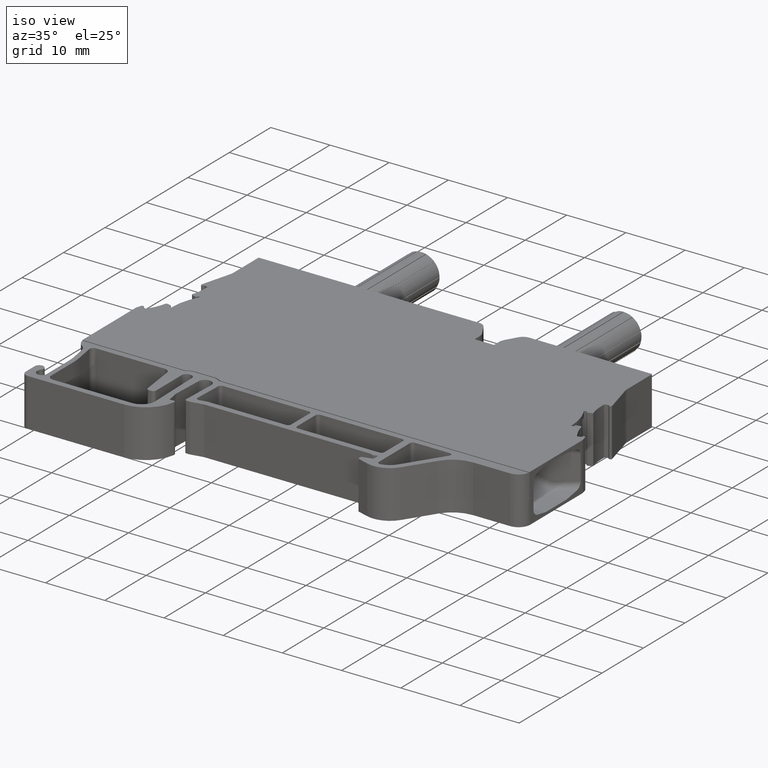
[diagram: clean part render]
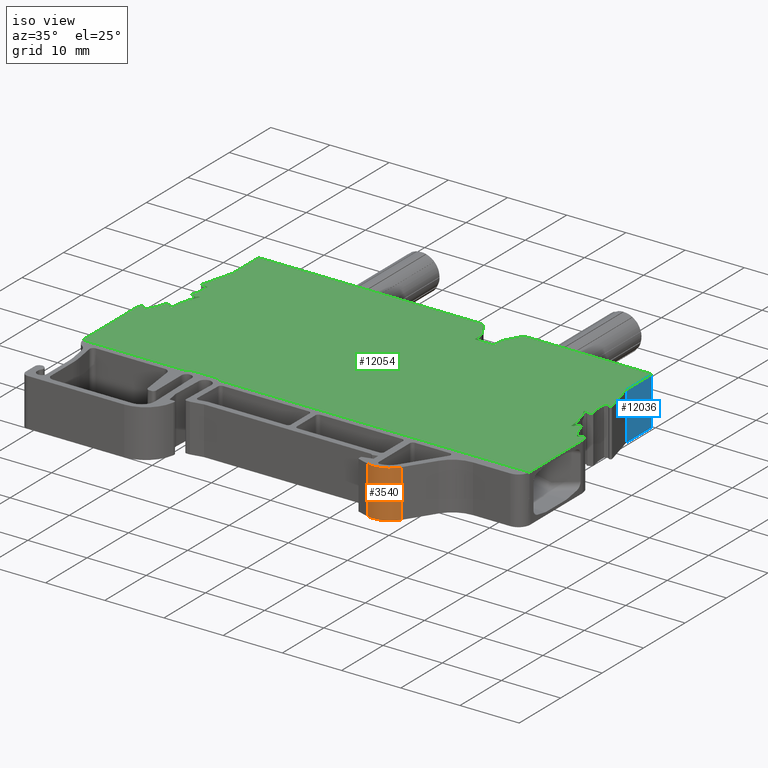
[diagram: same view with three faces highlighted in distinct colors, each labeled with its STEP entity id]
A machine part, iso view with three faces highlighted in distinct colors.
Their STEP definitions:

[orange] entity #3540 — the highlighted cylindrical surface (edge-blend (fillet) strip) has radius 4 mm, axis along (0, 0, 1).
#1339 = VERTEX_POINT ( 'NONE', #24140 ) ;
#1450 = VERTEX_POINT ( 'NONE', #24236 ) ;
#1824 = EDGE_LOOP ( 'NONE', ( #26436, #26456, #26475, #26424 ) ) ;
#2527 = EDGE_CURVE ( 'NONE', #23656, #23724, #8044, .T. ) ;
#2593 = EDGE_CURVE ( 'NONE', #1339, #23724, #15847, .T. ) ;
#2642 = EDGE_CURVE ( 'NONE', #1450, #23656, #15990, .T. ) ;
#3540 = ADVANCED_FACE ( 'NONE', ( #20711 ), #20763, .T. ) ;
#7561 = VECTOR ( 'NONE', #15876, 1000.000000000000000 ) ;
#7602 = VECTOR ( 'NONE', #16011, 1000.000000000000000 ) ;
#8016 = AXIS2_PLACEMENT_3D ( 'NONE', #15701, #15681, #15695 ) ;
#8044 = CIRCLE ( 'NONE', #8016, 4.000000000000225600 ) ;
#10769 = CARTESIAN_POINT ( 'NONE',  ( 1525.793273065314900, 990.7398618148470200, 8.050000000000000700 ) ) ;
#10904 = CARTESIAN_POINT ( 'NONE',  ( 1530.338075182085000, 992.3894684907380700, 8.050000000000000700 ) ) ;
#12809 = EDGE_CURVE ( 'NONE', #1339, #1450, #19152, .T. ) ;
#15681 = DIRECTION ( 'NONE',  ( 0.0000000000000000000, 0.0000000000000000000, 1.000000000000000000 ) ) ;
#15695 = DIRECTION ( 'NONE',  ( 1.000000000000000000, 0.0000000000000000000, 0.0000000000000000000 ) ) ;
#15701 = CARTESIAN_POINT ( 'NONE',  ( 1526.978371635415000, 994.5602729680009600, 8.050000000000000700 ) ) ;
#15847 = LINE ( 'NONE', #15878, #7561 ) ;
#15876 = DIRECTION ( 'NONE',  ( 0.0000000000000000000, 0.0000000000000000000, 1.000000000000000000 ) ) ;
#15878 = CARTESIAN_POINT ( 'NONE',  ( 1530.338075182085000, 992.3894684907380700, -77.36787831948760200 ) ) ;
#15990 = LINE ( 'NONE', #16006, #7602 ) ;
#16006 = CARTESIAN_POINT ( 'NONE',  ( 1525.793273065314900, 990.7398618148470200, -77.36787831948760200 ) ) ;
#16011 = DIRECTION ( 'NONE',  ( 0.0000000000000000000, 0.0000000000000000000, 1.000000000000000000 ) ) ;
#17690 = AXIS2_PLACEMENT_3D ( 'NONE', #20742, #20735, #20757 ) ;
#19152 = CIRCLE ( 'NONE', #19165, 4.000000000000225600 ) ;
#19165 = AXIS2_PLACEMENT_3D ( 'NONE', #23093, #23067, #23084 ) ;
#20711 = FACE_OUTER_BOUND ( 'NONE', #1824, .T. ) ;
#20735 = DIRECTION ( 'NONE',  ( 0.0000000000000000000, 0.0000000000000000000, 1.000000000000000000 ) ) ;
#20742 = CARTESIAN_POINT ( 'NONE',  ( 1526.978371635415000, 994.5602729680009600, -77.36787831948760200 ) ) ;
#20757 = DIRECTION ( 'NONE',  ( 1.000000000000000000, 0.0000000000000000000, 0.0000000000000000000 ) ) ;
#20763 = CYLINDRICAL_SURFACE ( 'NONE', #17690, 4.000000000000225600 ) ;
#23067 = DIRECTION ( 'NONE',  ( 0.0000000000000000000, 0.0000000000000000000, -1.000000000000000000 ) ) ;
#23084 = DIRECTION ( 'NONE',  ( -1.000000000000000000, 0.0000000000000000000, 0.0000000000000000000 ) ) ;
#23093 = CARTESIAN_POINT ( 'NONE',  ( 1526.978371635415000, 994.5602729680009600, 0.0000000000000000000 ) ) ;
#23656 = VERTEX_POINT ( 'NONE', #10769 ) ;
#23724 = VERTEX_POINT ( 'NONE', #10904 ) ;
#24140 = CARTESIAN_POINT ( 'NONE',  ( 1530.338075182085000, 992.3894684907380700, 0.0000000000000000000 ) ) ;
#24236 = CARTESIAN_POINT ( 'NONE',  ( 1525.793273065314900, 990.7398618148470200, 0.0000000000000000000 ) ) ;
#26424 = ORIENTED_EDGE ( 'NONE', *, *, #2527, .F. ) ;
#26436 = ORIENTED_EDGE ( 'NONE', *, *, #2642, .F. ) ;
#26456 = ORIENTED_EDGE ( 'NONE', *, *, #12809, .F. ) ;
#26475 = ORIENTED_EDGE ( 'NONE', *, *, #2593, .T. ) ;

[blue] entity #12036 — the highlighted planar face has unit normal (-1, 0, 0).
#1309 = VERTEX_POINT ( 'NONE', #24102 ) ;
#1314 = VERTEX_POINT ( 'NONE', #24129 ) ;
#7379 = AXIS2_PLACEMENT_3D ( 'NONE', #25226, #25221, #25223 ) ;
#9494 = LINE ( 'NONE', #9537, #18712 ) ;
#9537 = CARTESIAN_POINT ( 'NONE',  ( 1541.390232723564800, 1037.109526901990200, 0.0000000000000000000 ) ) ;
#9540 = DIRECTION ( 'NONE',  ( -0.0000000000000000000, -0.0000000000000000000, -1.000000000000000000 ) ) ;
#9814 = CARTESIAN_POINT ( 'NONE',  ( 1541.390232723564800, 0.0000000000000000000, 8.099999999999999600 ) ) ;
#9877 = DIRECTION ( 'NONE',  ( 0.0000000000000000000, 1.000000000000000000, 0.0000000000000000000 ) ) ;
#9897 = LINE ( 'NONE', #9814, #18720 ) ;
#10168 = CARTESIAN_POINT ( 'NONE',  ( 1541.390232723564800, 1031.152271934385900, 8.099999999999999600 ) ) ;
#10185 = CARTESIAN_POINT ( 'NONE',  ( 1541.390232723564800, 1037.109526901990200, 8.099999999999999600 ) ) ;
#10238 = LINE ( 'NONE', #10246, #18741 ) ;
#10246 = CARTESIAN_POINT ( 'NONE',  ( 1541.390232723564800, 1031.152271934385900, 0.0000000000000000000 ) ) ;
#10337 = DIRECTION ( 'NONE',  ( 0.0000000000000000000, 0.0000000000000000000, 1.000000000000000000 ) ) ;
#12036 = ADVANCED_FACE ( 'NONE', ( #25208 ), #25200, .F. ) ;
#12471 = EDGE_CURVE ( 'NONE', #22285, #1309, #9494, .T. ) ;
#12500 = EDGE_CURVE ( 'NONE', #22293, #22285, #9897, .T. ) ;
#12534 = EDGE_CURVE ( 'NONE', #1314, #22293, #10238, .T. ) ;
#12717 = EDGE_CURVE ( 'NONE', #1314, #1309, #22793, .T. ) ;
#18712 = VECTOR ( 'NONE', #9540, 1000.000000000000000 ) ;
#18720 = VECTOR ( 'NONE', #9877, 1000.000000000000000 ) ;
#18741 = VECTOR ( 'NONE', #10337, 1000.000000000000000 ) ;
#19064 = VECTOR ( 'NONE', #22821, 1000.000000000000000 ) ;
#22008 = EDGE_LOOP ( 'NONE', ( #26965, #26987, #26962, #27002 ) ) ;
#22285 = VERTEX_POINT ( 'NONE', #10185 ) ;
#22293 = VERTEX_POINT ( 'NONE', #10168 ) ;
#22759 = CARTESIAN_POINT ( 'NONE',  ( 1541.390232723746700, 1031.152271934452100, 0.0000000000000000000 ) ) ;
#22793 = LINE ( 'NONE', #22759, #19064 ) ;
#22821 = DIRECTION ( 'NONE',  ( 0.0000000000000000000, 1.000000000000000000, 0.0000000000000000000 ) ) ;
#24102 = CARTESIAN_POINT ( 'NONE',  ( 1541.390232723746700, 1037.109526902056100, 0.0000000000000000000 ) ) ;
#24129 = CARTESIAN_POINT ( 'NONE',  ( 1541.390232723746700, 1031.152271934452100, 0.0000000000000000000 ) ) ;
#25200 = PLANE ( 'NONE',  #7379 ) ;
#25208 = FACE_OUTER_BOUND ( 'NONE', #22008, .T. ) ;
#25221 = DIRECTION ( 'NONE',  ( -1.000000000000000000, 0.0000000000000000000, 0.0000000000000000000 ) ) ;
#25223 = DIRECTION ( 'NONE',  ( 0.0000000000000000000, 0.0000000000000000000, -1.000000000000000000 ) ) ;
#25226 = CARTESIAN_POINT ( 'NONE',  ( 1541.390232723564800, 1031.152271934385900, 0.0000000000000000000 ) ) ;
#26962 = ORIENTED_EDGE ( 'NONE', *, *, #12717, .T. ) ;
#26965 = ORIENTED_EDGE ( 'NONE', *, *, #12500, .F. ) ;
#26987 = ORIENTED_EDGE ( 'NONE', *, *, #12534, .F. ) ;
#27002 = ORIENTED_EDGE ( 'NONE', *, *, #12471, .F. ) ;

[green] entity #12054 — the highlighted planar face has unit normal (0, 0, 1).
#952 = VERTEX_POINT ( 'NONE', #23763 ) ;
#953 = VERTEX_POINT ( 'NONE', #23761 ) ;
#989 = VERTEX_POINT ( 'NONE', #23810 ) ;
#1027 = VERTEX_POINT ( 'NONE', #23834 ) ;
#1030 = VERTEX_POINT ( 'NONE', #23828 ) ;
#1035 = VERTEX_POINT ( 'NONE', #23830 ) ;
#1039 = VERTEX_POINT ( 'NONE', #23835 ) ;
#1055 = VERTEX_POINT ( 'NONE', #23838 ) ;
#1060 = VERTEX_POINT ( 'NONE', #23853 ) ;
#1071 = VERTEX_POINT ( 'NONE', #23889 ) ;
#1976 = EDGE_CURVE ( 'NONE', #1055, #1071, #13158, .T. ) ;
#2013 = EDGE_CURVE ( 'NONE', #953, #1060, #13258, .T. ) ;
#2019 = EDGE_CURVE ( 'NONE', #952, #1035, #13223, .T. ) ;
#2025 = EDGE_CURVE ( 'NONE', #1030, #989, #13225, .T. ) ;
#2034 = EDGE_CURVE ( 'NONE', #1027, #1039, #13204, .T. ) ;
#4066 = VERTEX_POINT ( 'NONE', #10152 ) ;
#4109 = VERTEX_POINT ( 'NONE', #10322 ) ;
#4113 = VERTEX_POINT ( 'NONE', #10336 ) ;
#4121 = VERTEX_POINT ( 'NONE', #10299 ) ;
#4122 = VERTEX_POINT ( 'NONE', #10292 ) ;
#4126 = VERTEX_POINT ( 'NONE', #10440 ) ;
#4129 = VERTEX_POINT ( 'NONE', #10310 ) ;
#4132 = VERTEX_POINT ( 'NONE', #10389 ) ;
#4136 = VERTEX_POINT ( 'NONE', #10290 ) ;
#4137 = VERTEX_POINT ( 'NONE', #10325 ) ;
#4138 = VERTEX_POINT ( 'NONE', #10294 ) ;
#4157 = VERTEX_POINT ( 'NONE', #10587 ) ;
#4163 = VERTEX_POINT ( 'NONE', #10573 ) ;
#6700 = AXIS2_PLACEMENT_3D ( 'NONE', #20359, #20385, #20351 ) ;
#6705 = CIRCLE ( 'NONE', #6722, 0.1999999999997559300 ) ;
#6715 = CIRCLE ( 'NONE', #6724, 0.1999999999997559300 ) ;
#6716 = VECTOR ( 'NONE', #19445, 1000.000000000000100 ) ;
#6718 = CIRCLE ( 'NONE', #6721, 7.500001632391395400 ) ;
#6721 = AXIS2_PLACEMENT_3D ( 'NONE', #19449, #19466, #19501 ) ;
#6722 = AXIS2_PLACEMENT_3D ( 'NONE', #20346, #20378, #20365 ) ;
#6724 = AXIS2_PLACEMENT_3D ( 'NONE', #19423, #19435, #19438 ) ;
#6732 = VECTOR ( 'NONE', #19444, 1000.000000000000200 ) ;
#6733 = CIRCLE ( 'NONE', #6700, 0.2500007978403218100 ) ;
#6737 = CIRCLE ( 'NONE', #6738, 0.2500007978385454500 ) ;
#6738 = AXIS2_PLACEMENT_3D ( 'NONE', #19420, #19425, #19418 ) ;
#6744 = CIRCLE ( 'NONE', #6746, 0.1999999999997559300 ) ;
#6745 = CIRCLE ( 'NONE', #6803, 2.000000000001778100 ) ;
#6746 = AXIS2_PLACEMENT_3D ( 'NONE', #19493, #19494, #19504 ) ;
#6748 = VECTOR ( 'NONE', #19583, 1000.000000000000000 ) ;
#6753 = VECTOR ( 'NONE', #8750, 1000.000000000000200 ) ;
#6754 = CIRCLE ( 'NONE', #6762, 9.999999999998454600 ) ;
#6755 = CIRCLE ( 'NONE', #6785, 0.1499999999998724600 ) ;
#6756 = AXIS2_PLACEMENT_3D ( 'NONE', #19558, #19571, #19588 ) ;
#6757 = CIRCLE ( 'NONE', #6767, 7.500001632394282000 ) ;
#6758 = VECTOR ( 'NONE', #19502, 1000.000000000000200 ) ;
#6760 = VECTOR ( 'NONE', #19552, 1000.000000000000100 ) ;
#6761 = VECTOR ( 'NONE', #19611, 999.9999999999998900 ) ;
#6762 = AXIS2_PLACEMENT_3D ( 'NONE', #19511, #19518, #19512 ) ;
#6767 = AXIS2_PLACEMENT_3D ( 'NONE', #19597, #19629, #19600 ) ;
#6773 = VECTOR ( 'NONE', #19581, 1000.000000000000100 ) ;
#6775 = VECTOR ( 'NONE', #19984, 1000.000000000000000 ) ;
#6782 = CIRCLE ( 'NONE', #6786, 0.1499999999980961000 ) ;
#6785 = AXIS2_PLACEMENT_3D ( 'NONE', #19468, #19462, #19475 ) ;
#6786 = AXIS2_PLACEMENT_3D ( 'NONE', #19528, #19519, #19537 ) ;
#6791 = CIRCLE ( 'NONE', #6756, 0.1999999999997559300 ) ;
#6797 = VECTOR ( 'NONE', #19541, 999.9999999999998900 ) ;
#6799 = VECTOR ( 'NONE', #19603, 1000.000000000000100 ) ;
#6803 = AXIS2_PLACEMENT_3D ( 'NONE', #19461, #19463, #19487 ) ;
#6809 = CIRCLE ( 'NONE', #6860, 0.1500000000014267700 ) ;
#6810 = CIRCLE ( 'NONE', #6833, 10.00000000000023100 ) ;
#6812 = CIRCLE ( 'NONE', #6846, 0.2000000000002000200 ) ;
#6815 = VECTOR ( 'NONE', #19713, 1000.000000000000200 ) ;
#6817 = VECTOR ( 'NONE', #19724, 1000.000000000000000 ) ;
#6818 = AXIS2_PLACEMENT_3D ( 'NONE', #19688, #19716, #19689 ) ;
#6822 = CIRCLE ( 'NONE', #6818, 0.1500000000014267700 ) ;
#6824 = CIRCLE ( 'NONE', #6827, 0.1499999999994283700 ) ;
#6827 = AXIS2_PLACEMENT_3D ( 'NONE', #19696, #19722, #19707 ) ;
#6830 = VECTOR ( 'NONE', #19761, 1000.000000000000100 ) ;
#6833 = AXIS2_PLACEMENT_3D ( 'NONE', #19740, #19759, #19749 ) ;
#6838 = CIRCLE ( 'NONE', #6854, 0.1499999999978740600 ) ;
#6839 = CIRCLE ( 'NONE', #6850, 0.2500007978407659000 ) ;
#6846 = AXIS2_PLACEMENT_3D ( 'NONE', #19652, #19667, #19685 ) ;
#6850 = AXIS2_PLACEMENT_3D ( 'NONE', #19738, #19748, #19758 ) ;
#6851 = AXIS2_PLACEMENT_3D ( 'NONE', #19720, #19692, #19703 ) ;
#6854 = AXIS2_PLACEMENT_3D ( 'NONE', #19782, #19814, #19799 ) ;
#6860 = AXIS2_PLACEMENT_3D ( 'NONE', #19727, #19718, #19695 ) ;
#6861 = CIRCLE ( 'NONE', #6851, 0.2500007978398777200 ) ;
#6868 = CIRCLE ( 'NONE', #6939, 0.1500000000016488100 ) ;
#6878 = VECTOR ( 'NONE', #19821, 999.9999999999998900 ) ;
#6884 = VECTOR ( 'NONE', #19955, 1000.000000000000100 ) ;
#6885 = CIRCLE ( 'NONE', #6886, 0.1999999999997559300 ) ;
#6886 = AXIS2_PLACEMENT_3D ( 'NONE', #19892, #19880, #19904 ) ;
#6887 = AXIS2_PLACEMENT_3D ( 'NONE', #19940, #19927, #19931 ) ;
#6888 = CIRCLE ( 'NONE', #6887, 0.1999999999999779700 ) ;
#6891 = CIRCLE ( 'NONE', #6897, 0.1999999999999779700 ) ;
#6892 = VECTOR ( 'NONE', #19868, 1000.000000000000000 ) ;
#6893 = AXIS2_PLACEMENT_3D ( 'NONE', #19787, #19784, #19794 ) ;
#6897 = AXIS2_PLACEMENT_3D ( 'NONE', #19943, #19922, #19935 ) ;
#6898 = VECTOR ( 'NONE', #19781, 1000.000000000000100 ) ;
#6899 = VECTOR ( 'NONE', #19945, 1000.000000000000100 ) ;
#6903 = VECTOR ( 'NONE', #19831, 1000.000000000000100 ) ;
#6904 = VECTOR ( 'NONE', #19873, 1000.000000000000100 ) ;
#6905 = AXIS2_PLACEMENT_3D ( 'NONE', #19881, #19902, #19905 ) ;
#6907 = VECTOR ( 'NONE', #19913, 1000.000000000000100 ) ;
#6911 = CIRCLE ( 'NONE', #6893, 7.500001632395392200 ) ;
#6912 = VECTOR ( 'NONE', #19786, 1000.000000000000200 ) ;
#6913 = CIRCLE ( 'NONE', #6905, 0.2500007978400997600 ) ;
#6916 = VECTOR ( 'NONE', #19933, 1000.000000000000100 ) ;
#6918 = VECTOR ( 'NONE', #19883, 1000.000000000000000 ) ;
#6939 = AXIS2_PLACEMENT_3D ( 'NONE', #19994, #19998, #19967 ) ;
#7050 = CIRCLE ( 'NONE', #7240, 7.500001632396058300 ) ;
#7106 = CIRCLE ( 'NONE', #7157, 2.000000000000001800 ) ;
#7157 = AXIS2_PLACEMENT_3D ( 'NONE', #19709, #25138, #8800 ) ;
#7178 = VECTOR ( 'NONE', #20002, 999.9999999999998900 ) ;
#7240 = AXIS2_PLACEMENT_3D ( 'NONE', #8808, #8727, #8747 ) ;
#7328 = VECTOR ( 'NONE', #24988, 1000.000000000000200 ) ;
#7342 = VECTOR ( 'NONE', #8735, 1000.000000000000100 ) ;
#7412 = AXIS2_PLACEMENT_3D ( 'NONE', #20044, #20042, #20030 ) ;
#7416 = VECTOR ( 'NONE', #20165, 1000.000000000000000 ) ;
#7419 = CIRCLE ( 'NONE', #7444, 0.1499999999989842800 ) ;
#7430 = VECTOR ( 'NONE', #20167, 1000.000000000000000 ) ;
#7442 = VECTOR ( 'NONE', #20179, 1000.000000000000000 ) ;
#7444 = AXIS2_PLACEMENT_3D ( 'NONE', #19989, #19964, #19969 ) ;
#7480 = CIRCLE ( 'NONE', #7483, 0.1500000000009826800 ) ;
#7483 = AXIS2_PLACEMENT_3D ( 'NONE', #20345, #20308, #20313 ) ;
#7498 = VECTOR ( 'NONE', #20307, 999.9999999999998900 ) ;
#7503 = VECTOR ( 'NONE', #20335, 1000.000000000000200 ) ;
#7507 = VECTOR ( 'NONE', #20344, 1000.000000000000200 ) ;
#7508 = VECTOR ( 'NONE', #20302, 1000.000000000000100 ) ;
#8575 = EDGE_CURVE ( 'NONE', #989, #4113, #24932, .T. ) ;
#8725 = LINE ( 'NONE', #8796, #6753 ) ;
#8727 = DIRECTION ( 'NONE',  ( 0.0000000000000000000, 0.0000000000000000000, -1.000000000000000000 ) ) ;
#8729 = LINE ( 'NONE', #8737, #7342 ) ;
#8732 = DIRECTION ( 'NONE',  ( -1.000000000000000000, 0.0000000000000000000, 0.0000000000000000000 ) ) ;
#8735 = DIRECTION ( 'NONE',  ( -0.2588187439759744900, -0.9659259069756328500, 0.0000000000000000000 ) ) ;
#8737 = CARTESIAN_POINT ( 'NONE',  ( 1118.637524106020000, -298.6658520019260000, 8.099999999999999600 ) ) ;
#8741 = DIRECTION ( 'NONE',  ( 0.0000000000000000000, 0.0000000000000000000, -1.000000000000000000 ) ) ;
#8747 = DIRECTION ( 'NONE',  ( -1.000000000000000000, 0.0000000000000000000, 0.0000000000000000000 ) ) ;
#8750 = DIRECTION ( 'NONE',  ( -0.9659283559279021600, 0.2588096041773175800, 0.0000000000000000000 ) ) ;
#8760 = CARTESIAN_POINT ( 'NONE',  ( 1470.860708583715900, 1014.884677237498000, 8.099999999999999600 ) ) ;
#8762 = DIRECTION ( 'NONE',  ( 0.0000000000000000000, 0.0000000000000000000, -1.000000000000000000 ) ) ;
#8796 = CARTESIAN_POINT ( 'NONE',  ( 355.9534815010860000, 1313.559629404358000, 8.099999999999999600 ) ) ;
#8800 = DIRECTION ( 'NONE',  ( -1.000000000000000000, 0.0000000000000000000, 0.0000000000000000000 ) ) ;
#8808 = CARTESIAN_POINT ( 'NONE',  ( 1465.662528073384000, 1019.053228711477900, 8.099999999999999600 ) ) ;
#8810 = CARTESIAN_POINT ( 'NONE',  ( 1473.196491569661900, 1017.419852352586000, 8.099999999999999600 ) ) ;
#8824 = DIRECTION ( 'NONE',  ( -0.9762865495995442000, 0.2164822696458460500, 0.0000000000000000000 ) ) ;
#8839 = CARTESIAN_POINT ( 'NONE',  ( 287.9269545088935200, 1280.446972443840200, 8.099999999999999600 ) ) ;
#8890 = DIRECTION ( 'NONE',  ( -1.000000000000000000, 0.0000000000000000000, 0.0000000000000000000 ) ) ;
#8906 = LINE ( 'NONE', #8839, #18562 ) ;
#8916 = CARTESIAN_POINT ( 'NONE',  ( 1497.049179886646000, 1037.259526901991900, 8.099999999999999600 ) ) ;
#8965 = LINE ( 'NONE', #8916, #18590 ) ;
#8981 = DIRECTION ( 'NONE',  ( -1.000000000000000000, -3.440917923019170200E-013, 0.0000000000000000000 ) ) ;
#9115 = LINE ( 'NONE', #9193, #18613 ) ;
#9149 = DIRECTION ( 'NONE',  ( -1.000000000000000000, 0.0000000000000000000, 0.0000000000000000000 ) ) ;
#9193 = CARTESIAN_POINT ( 'NONE',  ( 0.0000000000000000000, 1032.504995780731900, 8.099999999999999600 ) ) ;
#9309 = DIRECTION ( 'NONE',  ( -0.0000000000000000000, -0.0000000000000000000, 1.000000000000000000 ) ) ;
#9315 = CARTESIAN_POINT ( 'NONE',  ( 1487.641902307500000, 1001.571102831146000, 8.099999999999999600 ) ) ;
#9324 = LINE ( 'NONE', #9370, #18711 ) ;
#9353 = DIRECTION ( 'NONE',  ( 0.0000000000000000000, 0.0000000000000000000, -1.000000000000000000 ) ) ;
#9356 = DIRECTION ( 'NONE',  ( -1.000000000000000000, 0.0000000000000000000, 0.0000000000000000000 ) ) ;
#9361 = DIRECTION ( 'NONE',  ( -0.4999991873555900700, -0.8660258729643991500, 0.0000000000000000000 ) ) ;
#9370 = CARTESIAN_POINT ( 'NONE',  ( 690.6531024460049400, -398.7478905053624800, 8.099999999999999600 ) ) ;
#9418 = CARTESIAN_POINT ( 'NONE',  ( 1543.390232723564800, 1031.152271934385900, 8.099999999999999600 ) ) ;
#9426 = DIRECTION ( 'NONE',  ( -0.0000000000000000000, -0.0000000000000000000, -1.000000000000000000 ) ) ;
#9429 = DIRECTION ( 'NONE',  ( 1.000000000000000000, 0.0000000000000000000, 0.0000000000000000000 ) ) ;
#9445 = CARTESIAN_POINT ( 'NONE',  ( 1472.390199416931900, 1001.417680530402000, 8.099999999999999600 ) ) ;
#9450 = DIRECTION ( 'NONE',  ( -1.000000000000000000, 0.0000000000000000000, 0.0000000000000000000 ) ) ;
#9461 = LINE ( 'NONE', #9514, #18706 ) ;
#9481 = DIRECTION ( 'NONE',  ( -0.5000084624626218700, 0.8660205179242376200, 0.0000000000000000000 ) ) ;
#9508 = DIRECTION ( 'NONE',  ( -1.000000000000000000, 0.0000000000000000000, 0.0000000000000000000 ) ) ;
#9514 = CARTESIAN_POINT ( 'NONE',  ( 1583.870271150545000, 914.4685635352609600, 8.099999999999999600 ) ) ;
#9515 = CARTESIAN_POINT ( 'NONE',  ( 1519.985559875754900, 1033.701168484701800, 8.099999999999999600 ) ) ;
#9517 = DIRECTION ( 'NONE',  ( 0.0000000000000000000, 0.0000000000000000000, -1.000000000000000000 ) ) ;
#9555 = DIRECTION ( 'NONE',  ( 0.0000000000000000000, 0.0000000000000000000, -1.000000000000000000 ) ) ;
#9561 = DIRECTION ( 'NONE',  ( -1.000000000000000000, 0.0000000000000000000, 0.0000000000000000000 ) ) ;
#9575 = CARTESIAN_POINT ( 'NONE',  ( 1475.040232723564000, 1037.109526901990200, 8.099999999999999600 ) ) ;
#9578 = DIRECTION ( 'NONE',  ( 0.0000000000000000000, 0.0000000000000000000, -1.000000000000000000 ) ) ;
#9583 = DIRECTION ( 'NONE',  ( -1.000000000000000000, 0.0000000000000000000, 0.0000000000000000000 ) ) ;
#9601 = CARTESIAN_POINT ( 'NONE',  ( 1543.890239141874900, 1001.417680627276100, 8.099999999999999600 ) ) ;
#9612 = DIRECTION ( 'NONE',  ( -1.000000000000000000, 0.0000000000000000000, 0.0000000000000000000 ) ) ;
#9617 = CARTESIAN_POINT ( 'NONE',  ( 1489.037738796136000, 999.6768352953980600, 8.099999999999999600 ) ) ;
#9620 = CARTESIAN_POINT ( 'NONE',  ( 1504.251835579599900, 1001.629835295399900, 8.099999999999999600 ) ) ;
#9623 = CARTESIAN_POINT ( 'NONE',  ( 1517.985559875754900, 0.0000000000000000000, 8.099999999999999600 ) ) ;
#9624 = CARTESIAN_POINT ( 'NONE',  ( 1541.240232723565000, 1037.259526901990100, 8.099999999999999600 ) ) ;
#9625 = DIRECTION ( 'NONE',  ( 0.0000000000000000000, 0.0000000000000000000, 1.000000000000000000 ) ) ;
#9626 = CARTESIAN_POINT ( 'NONE',  ( 1543.040672281405000, 1017.615108522288000, 8.099999999999999600 ) ) ;
#9629 = CARTESIAN_POINT ( 'NONE',  ( 1474.983857048026000, 1021.766592966450200, 8.099999999999999600 ) ) ;
#9632 = CARTESIAN_POINT ( 'NONE',  ( 1543.277159433190000, 1017.471614704337900, 8.099999999999999600 ) ) ;
#9634 = DIRECTION ( 'NONE',  ( 0.0000000000000000000, 0.0000000000000000000, -1.000000000000000000 ) ) ;
#9635 = CARTESIAN_POINT ( 'NONE',  ( 1545.178241065744900, 1014.949337439194000, 8.099999999999999600 ) ) ;
#9639 = CARTESIAN_POINT ( 'NONE',  ( 1470.390226305256000, 999.7595369251489500, 8.099999999999999600 ) ) ;
#9644 = CARTESIAN_POINT ( 'NONE',  ( 1541.296608399100000, 1021.766592966450200, 8.099999999999999600 ) ) ;
#9646 = CARTESIAN_POINT ( 'NONE',  ( 1471.102202801530000, 1014.949337439194000, 8.099999999999999600 ) ) ;
#9649 = CARTESIAN_POINT ( 'NONE',  ( 1544.122746111195100, 1015.303226718299900, 8.099999999999999600 ) ) ;
#9655 = CARTESIAN_POINT ( 'NONE',  ( 1541.236461973934900, 1021.757338098720000, 8.099999999999999600 ) ) ;
#9659 = LINE ( 'NONE', #9670, #18709 ) ;
#9662 = CARTESIAN_POINT ( 'NONE',  ( 1520.596601130359900, 1037.259526901990100, 8.099999999999999600 ) ) ;
#9664 = LINE ( 'NONE', #9620, #18726 ) ;
#9668 = CARTESIAN_POINT ( 'NONE',  ( 1541.043268213359900, 1021.905566099722000, 8.099999999999999600 ) ) ;
#9670 = CARTESIAN_POINT ( 'NONE',  ( 1514.720728150329900, 0.0007286831166407839900, 8.099999999999999600 ) ) ;
#9671 = CARTESIAN_POINT ( 'NONE',  ( 1544.474133295854900, 1014.694551611542000, 8.099999999999999600 ) ) ;
#9675 = CARTESIAN_POINT ( 'NONE',  ( 1544.642846361239900, 1014.624653262398200, 8.099999999999999600 ) ) ;
#9689 = CARTESIAN_POINT ( 'NONE',  ( 1541.915779741984800, 1022.552181794252000, 8.099999999999999600 ) ) ;
#9695 = CARTESIAN_POINT ( 'NONE',  ( 1542.012102572804900, 1022.192732117458000, 8.099999999999999600 ) ) ;
#9696 = CARTESIAN_POINT ( 'NONE',  ( 1493.722140251408100, 1001.571102831160000, 8.099999999999999600 ) ) ;
#9699 = CARTESIAN_POINT ( 'NONE',  ( 1542.294541837495000, 1017.235886909430100, 8.099999999999999600 ) ) ;
#9702 = CARTESIAN_POINT ( 'NONE',  ( 1542.444442770735100, 1017.482902683822100, 8.099999999999999600 ) ) ;
#9704 = DIRECTION ( 'NONE',  ( -0.0000000000000000000, -0.0000000000000000000, -1.000000000000000000 ) ) ;
#9707 = DIRECTION ( 'NONE',  ( 1.000000000000000000, 0.0000000000000000000, 0.0000000000000000000 ) ) ;
#9710 = CARTESIAN_POINT ( 'NONE',  ( 1474.509155290069900, 1025.341117015345800, 8.099999999999999600 ) ) ;
#9712 = DIRECTION ( 'NONE',  ( -1.000000000000000000, -6.752021236569260200E-014, 0.0000000000000000000 ) ) ;
#9713 = CARTESIAN_POINT ( 'NONE',  ( 1541.660174240035100, 1024.493399354714000, 8.099999999999999600 ) ) ;
#9724 = CARTESIAN_POINT ( 'NONE',  ( 1473.985902029781800, 1017.235886909430100, 8.099999999999999600 ) ) ;
#9727 = CARTESIAN_POINT ( 'NONE',  ( 1545.419746074730000, 1015.134678035103800, 8.099999999999999600 ) ) ;
#9729 = DIRECTION ( 'NONE',  ( -4.810676338538762800E-007, 0.9999999999998843100, 0.0000000000000000000 ) ) ;
#9732 = LINE ( 'NONE', #9623, #18679 ) ;
#9735 = CARTESIAN_POINT ( 'NONE',  ( 1541.458377335595300, 1030.634647785238300, 8.099999999999999600 ) ) ;
#9740 = LINE ( 'NONE', #9639, #18687 ) ;
#9745 = CARTESIAN_POINT ( 'NONE',  ( 1470.619228157075900, 1014.949388924770000, 8.099999999999999600 ) ) ;
#9753 = CARTESIAN_POINT ( 'NONE',  ( 1540.567368495045000, 1021.973282954996100, 8.099999999999999600 ) ) ;
#9755 = CARTESIAN_POINT ( 'NONE',  ( 1520.596601130359900, 1035.759526901990100, 8.099999999999999600 ) ) ;
#9756 = CARTESIAN_POINT ( 'NONE',  ( 1545.125968460304900, 1014.754103267579900, 8.099999999999999600 ) ) ;
#9764 = DIRECTION ( 'NONE',  ( 0.0000000000000000000, -1.000000000000000000, 0.0000000000000000000 ) ) ;
#9765 = CARTESIAN_POINT ( 'NONE',  ( 1541.771295057395000, 1025.341112967882100, 8.099999999999999600 ) ) ;
#9767 = DIRECTION ( 'NONE',  ( 1.000000000000000000, -5.551115123126393600E-013, 0.0000000000000000000 ) ) ;
#9768 = CARTESIAN_POINT ( 'NONE',  ( 1541.879054195680100, 1021.950218873995900, 8.099999999999999600 ) ) ;
#9776 = CARTESIAN_POINT ( 'NONE',  ( 1541.033277006690000, 1021.942847468670000, 8.099999999999999600 ) ) ;
#9780 = DIRECTION ( 'NONE',  ( -1.000000000000000000, 0.0000000000000000000, 0.0000000000000000000 ) ) ;
#9781 = CARTESIAN_POINT ( 'NONE',  ( 1474.401411251448100, 1021.950218873995900, 8.099999999999999600 ) ) ;
#9790 = CARTESIAN_POINT ( 'NONE',  ( 1472.157719335934000, 1015.303226718299900, 8.099999999999999600 ) ) ;
#9795 = CARTESIAN_POINT ( 'NONE',  ( 1474.620291207093700, 1024.493399354714000, 8.099999999999999600 ) ) ;
#9800 = CARTESIAN_POINT ( 'NONE',  ( 1474.364685705141900, 1022.552181794252000, 8.099999999999999600 ) ) ;
#9802 = CARTESIAN_POINT ( 'NONE',  ( 1474.364199168155900, 1016.939276171868100, 8.099999999999999600 ) ) ;
#9804 = CARTESIAN_POINT ( 'NONE',  ( 1474.890232723563900, 0.0000000000000000000, 8.099999999999999600 ) ) ;
#9814 = CARTESIAN_POINT ( 'NONE',  ( 1541.390232723564800, 0.0000000000000000000, 8.099999999999999600 ) ) ;
#9815 = CARTESIAN_POINT ( 'NONE',  ( 1475.040232723564000, 1037.259526901990100, 8.099999999999999600 ) ) ;
#9818 = CARTESIAN_POINT ( 'NONE',  ( 1474.620328883060200, 1025.196221051670100, 8.099999999999999600 ) ) ;
#9819 = DIRECTION ( 'NONE',  ( 0.0000000000000000000, -1.000000000000000000, 0.0000000000000000000 ) ) ;
#9824 = CARTESIAN_POINT ( 'NONE',  ( 1542.574118080325200, 1025.254391876942000, 8.099999999999999600 ) ) ;
#9828 = DIRECTION ( 'NONE',  ( 0.0000000000000000000, 0.0000000000000000000, -1.000000000000000000 ) ) ;
#9831 = CARTESIAN_POINT ( 'NONE',  ( 1473.239788023590100, 1017.615109662506100, 8.099999999999999600 ) ) ;
#9834 = CARTESIAN_POINT ( 'NONE',  ( 1473.836011886465900, 1017.482902683822100, 8.099999999999999600 ) ) ;
#9840 = CARTESIAN_POINT ( 'NONE',  ( 1474.026031872752100, 1025.470582232236000, 8.099999999999999600 ) ) ;
#9842 = DIRECTION ( 'NONE',  ( 0.0000000000000000000, -1.000000000000000000, 0.0000000000000000000 ) ) ;
#9849 = CARTESIAN_POINT ( 'NONE',  ( 1541.660136564069900, 1025.196221051670100, 8.099999999999999600 ) ) ;
#9852 = CARTESIAN_POINT ( 'NONE',  ( 1542.397293827115200, 1025.327651626340200, 8.099999999999999600 ) ) ;
#9855 = CARTESIAN_POINT ( 'NONE',  ( 1542.254414274265200, 1025.470579951716000, 8.099999999999999600 ) ) ;
#9858 = CARTESIAN_POINT ( 'NONE',  ( 1472.906987989883900, 1017.112140098310100, 8.099999999999999600 ) ) ;
#9873 = CARTESIAN_POINT ( 'NONE',  ( 1470.390226305256000, 1013.831436634986100, 8.099999999999999600 ) ) ;
#9877 = DIRECTION ( 'NONE',  ( 0.0000000000000000000, 1.000000000000000000, 0.0000000000000000000 ) ) ;
#9878 = CARTESIAN_POINT ( 'NONE',  ( 1475.430878749102000, 1022.048906860254100, 8.099999999999999600 ) ) ;
#9884 = LINE ( 'NONE', #9804, #18672 ) ;
#9890 = CARTESIAN_POINT ( 'NONE',  ( 1474.822088111533700, 1030.634647785238500, 8.099999999999999600 ) ) ;
#9892 = CARTESIAN_POINT ( 'NONE',  ( 1475.247166860589900, 1021.942847468670000, 8.099999999999999600 ) ) ;
#9895 = CARTESIAN_POINT ( 'NONE',  ( 1473.003306013936000, 1017.471614704337900, 8.099999999999999600 ) ) ;
#9897 = LINE ( 'NONE', #9814, #18720 ) ;
#9898 = CARTESIAN_POINT ( 'NONE',  ( 1473.975913435012200, 1017.198604840602100, 8.099999999999999600 ) ) ;
#9901 = CARTESIAN_POINT ( 'NONE',  ( 1470.458374491409800, 1014.349074123330100, 8.099999999999999600 ) ) ;
#9904 = CARTESIAN_POINT ( 'NONE',  ( 1475.237175653918000, 1021.905566099722000, 8.099999999999999600 ) ) ;
#9907 = CARTESIAN_POINT ( 'NONE',  ( 1471.637603984260100, 1014.624657307585800, 8.099999999999999600 ) ) ;
#9912 = CARTESIAN_POINT ( 'NONE',  ( 1471.806332151270200, 1014.694551611542000, 8.099999999999999600 ) ) ;
#9914 = CARTESIAN_POINT ( 'NONE',  ( 1472.890232723563900, 1031.152271934385900, 8.099999999999999600 ) ) ;
#9917 = CARTESIAN_POINT ( 'NONE',  ( 1512.109259930435200, 1035.759526901992100, 8.099999999999999600 ) ) ;
#9924 = CARTESIAN_POINT ( 'NONE',  ( 1473.883150040162000, 1025.327651626340200, 8.099999999999999600 ) ) ;
#9934 = DIRECTION ( 'NONE',  ( -1.000000000000000000, 0.0000000000000000000, 0.0000000000000000000 ) ) ;
#9935 = CARTESIAN_POINT ( 'NONE',  ( 1542.815611944980000, 1025.569094479309800, 8.099999999999999600 ) ) ;
#9937 = DIRECTION ( 'NONE',  ( 0.0000000000000000000, 0.0000000000000000000, -1.000000000000000000 ) ) ;
#9941 = CARTESIAN_POINT ( 'NONE',  ( 1471.154476129705900, 1014.754105964970100, 8.099999999999999600 ) ) ;
#9957 = CARTESIAN_POINT ( 'NONE',  ( 1489.037738796160100, 1001.629835295397800, 8.099999999999999600 ) ) ;
#9959 = CARTESIAN_POINT ( 'NONE',  ( 1512.720230870425000, 1033.701334996966100, 8.099999999999999600 ) ) ;
#9966 = CARTESIAN_POINT ( 'NONE',  ( 1474.890232723563900, 1031.152271934385900, 8.099999999999999600 ) ) ;
#9990 = CARTESIAN_POINT ( 'NONE',  ( 1512.109259930435200, 1037.259526901991900, 8.099999999999999600 ) ) ;
#9997 = CARTESIAN_POINT ( 'NONE',  ( 1492.326303762788000, 1001.629835295397800, 8.099999999999999600 ) ) ;
#10013 = CARTESIAN_POINT ( 'NONE',  ( 1493.484853980530000, 1001.249085400492000, 8.099999999999999600 ) ) ;
#10016 = CARTESIAN_POINT ( 'NONE',  ( 1517.985559875754900, 1032.504995780731900, 8.099999999999999600 ) ) ;
#10024 = DIRECTION ( 'NONE',  ( -1.000000000000000000, 0.0000000000000000000, 0.0000000000000000000 ) ) ;
#10025 = CARTESIAN_POINT ( 'NONE',  ( 1514.452271906269700, 1034.701351921889900, 8.099999999999999600 ) ) ;
#10033 = CARTESIAN_POINT ( 'NONE',  ( 1513.408290707320000, 1036.509539595684100, 8.099999999999999600 ) ) ;
#10041 = CARTESIAN_POINT ( 'NONE',  ( 1518.253508129829900, 1034.701166859416200, 8.099999999999999600 ) ) ;
#10046 = DIRECTION ( 'NONE',  ( 0.0000000000000000000, 0.0000000000000000000, -1.000000000000000000 ) ) ;
#10047 = CARTESIAN_POINT ( 'NONE',  ( 1519.297562320909900, 1036.509525683026100, 8.099999999999999600 ) ) ;
#10057 = CARTESIAN_POINT ( 'NONE',  ( 1517.985559875754900, 1033.701168484701800, 8.099999999999999600 ) ) ;
#10060 = CARTESIAN_POINT ( 'NONE',  ( 1514.720231445945000, 1032.504995780731900, 8.099999999999999600 ) ) ;
#10063 = CARTESIAN_POINT ( 'NONE',  ( 1470.390226305251900, 1001.407309775272000, 8.099999999999999600 ) ) ;
#10085 = CARTESIAN_POINT ( 'NONE',  ( 1487.879188578414000, 1001.249085400506000, 8.099999999999999600 ) ) ;
#10152 = CARTESIAN_POINT ( 'NONE',  ( 1470.405457761644100, 1001.171102831154000, 8.099999999999999600 ) ) ;
#10168 = CARTESIAN_POINT ( 'NONE',  ( 1541.390232723564800, 1031.152271934385900, 8.099999999999999600 ) ) ;
#10178 = DIRECTION ( 'NONE',  ( 0.0000000000000000000, 0.0000000000000000000, 1.000000000000000000 ) ) ;
#10185 = CARTESIAN_POINT ( 'NONE',  ( 1541.390232723564800, 1037.109526901990200, 8.099999999999999600 ) ) ;
#10249 = DIRECTION ( 'NONE',  ( 1.000000000000000000, 0.0000000000000000000, 0.0000000000000000000 ) ) ;
#10259 = CARTESIAN_POINT ( 'NONE',  ( 1492.326303762788000, 999.6768352953980600, 8.099999999999999600 ) ) ;
#10268 = CARTESIAN_POINT ( 'NONE',  ( 1514.720230870425000, 1033.701334996966100, 8.099999999999999600 ) ) ;
#10290 = CARTESIAN_POINT ( 'NONE',  ( 1540.849581664490000, 1022.048905511453900, 8.099999999999999600 ) ) ;
#10291 = CARTESIAN_POINT ( 'NONE',  ( 1474.890232723563900, 1037.109526901990200, 8.099999999999999600 ) ) ;
#10292 = CARTESIAN_POINT ( 'NONE',  ( 1545.661237290049900, 1014.949388924770000, 8.099999999999999600 ) ) ;
#10294 = CARTESIAN_POINT ( 'NONE',  ( 1545.874980785125000, 1001.171102831160100, 8.099999999999999600 ) ) ;
#10299 = CARTESIAN_POINT ( 'NONE',  ( 1493.722140251484000, 1001.171102831160100, 8.099999999999999600 ) ) ;
#10310 = CARTESIAN_POINT ( 'NONE',  ( 1545.822090955719900, 1014.349074123330100, 8.099999999999999600 ) ) ;
#10322 = CARTESIAN_POINT ( 'NONE',  ( 1545.890239141874900, 1001.417680627350000, 8.099999999999999600 ) ) ;
#10325 = CARTESIAN_POINT ( 'NONE',  ( 1540.888400568625000, 1022.054018469251900, 8.099999999999999600 ) ) ;
#10336 = CARTESIAN_POINT ( 'NONE',  ( 1541.916266278969900, 1016.939276171868100, 8.099999999999999600 ) ) ;
#10389 = CARTESIAN_POINT ( 'NONE',  ( 1542.304530432265000, 1017.198604840602100, 8.099999999999999600 ) ) ;
#10440 = CARTESIAN_POINT ( 'NONE',  ( 1543.373477457244900, 1017.112140098310100, 8.099999999999999600 ) ) ;
#10495 = DIRECTION ( 'NONE',  ( 0.0000000000000000000, 0.0000000000000000000, -1.000000000000000000 ) ) ;
#10562 = DIRECTION ( 'NONE',  ( -1.000000000000000000, 0.0000000000000000000, 0.0000000000000000000 ) ) ;
#10573 = CARTESIAN_POINT ( 'NONE',  ( 1487.641902307500000, 1001.171102831146100, 8.099999999999999600 ) ) ;
#10587 = CARTESIAN_POINT ( 'NONE',  ( 1545.890239141870100, 1013.831436634986100, 8.099999999999999600 ) ) ;
#10593 = CARTESIAN_POINT ( 'NONE',  ( 1541.240232723565000, 1037.109526901990200, 8.099999999999999600 ) ) ;
#12054 = ADVANCED_FACE ( 'NONE', ( #20052 ), #20040, .T. ) ;
#12089 = EDGE_CURVE ( 'NONE', #4163, #4066, #20193, .T. ) ;
#12092 = EDGE_CURVE ( 'NONE', #4109, #4157, #20176, .T. ) ;
#12097 = EDGE_CURVE ( 'NONE', #4138, #4121, #20158, .T. ) ;
#12131 = EDGE_CURVE ( 'NONE', #4132, #1030, #7480, .T. ) ;
#12135 = EDGE_CURVE ( 'NONE', #4129, #4122, #20318, .T. ) ;
#12136 = EDGE_CURVE ( 'NONE', #22109, #4132, #20322, .T. ) ;
#12137 = EDGE_CURVE ( 'NONE', #4126, #22120, #20299, .T. ) ;
#12141 = EDGE_CURVE ( 'NONE', #22123, #22137, #20329, .T. ) ;
#12146 = EDGE_CURVE ( 'NONE', #22111, #22139, #6733, .T. ) ;
#12150 = EDGE_CURVE ( 'NONE', #22125, #22120, #6705, .T. ) ;
#12171 = EDGE_CURVE ( 'NONE', #22139, #4122, #6737, .T. ) ;
#12178 = EDGE_CURVE ( 'NONE', #22125, #22089, #19442, .T. ) ;
#12180 = EDGE_CURVE ( 'NONE', #22109, #22089, #6715, .T. ) ;
#12181 = EDGE_CURVE ( 'NONE', #22119, #22117, #19447, .T. ) ;
#12182 = EDGE_CURVE ( 'NONE', #22117, #4126, #6718, .T. ) ;
#12187 = EDGE_CURVE ( 'NONE', #22137, #22119, #6755, .T. ) ;
#12192 = EDGE_CURVE ( 'NONE', #4129, #4157, #6745, .T. ) ;
#12196 = EDGE_CURVE ( 'NONE', #22126, #22128, #6744, .T. ) ;
#12199 = EDGE_CURVE ( 'NONE', #22113, #22128, #19540, .T. ) ;
#12205 = EDGE_CURVE ( 'NONE', #22086, #22115, #19547, .T. ) ;
#12208 = EDGE_CURVE ( 'NONE', #22132, #4113, #6754, .T. ) ;
#12209 = EDGE_CURVE ( 'NONE', #4136, #4137, #6782, .T. ) ;
#12212 = EDGE_CURVE ( 'NONE', #22111, #22123, #19589, .T. ) ;
#12216 = EDGE_CURVE ( 'NONE', #22099, #22202, #19563, .T. ) ;
#12219 = EDGE_CURVE ( 'NONE', #22118, #22115, #6791, .T. ) ;
#12221 = EDGE_CURVE ( 'NONE', #22106, #22201, #19584, .T. ) ;
#12229 = EDGE_CURVE ( 'NONE', #22118, #22110, #19596, .T. ) ;
#12232 = EDGE_CURVE ( 'NONE', #22132, #4136, #19640, .T. ) ;
#12234 = EDGE_CURVE ( 'NONE', #22110, #22106, #6757, .T. ) ;
#12247 = EDGE_CURVE ( 'NONE', #22086, #22126, #6812, .T. ) ;
#12256 = EDGE_CURVE ( 'NONE', #22201, #22099, #6822, .T. ) ;
#12258 = EDGE_CURVE ( 'NONE', #4137, #22113, #6824, .T. ) ;
#12259 = EDGE_CURVE ( 'NONE', #22097, #22185, #6809, .T. ) ;
#12261 = EDGE_CURVE ( 'NONE', #22155, #22184, #6861, .T. ) ;
#12262 = EDGE_CURVE ( 'NONE', #22181, #1060, #19700, .T. ) ;
#12267 = EDGE_CURVE ( 'NONE', #22155, #22084, #19715, .T. ) ;
#12273 = EDGE_CURVE ( 'NONE', #22202, #22182, #19737, .T. ) ;
#12279 = EDGE_CURVE ( 'NONE', #22183, #1027, #6810, .T. ) ;
#12281 = EDGE_CURVE ( 'NONE', #22184, #22182, #6839, .T. ) ;
#12282 = EDGE_CURVE ( 'NONE', #22193, #22147, #6838, .T. ) ;
#12289 = EDGE_CURVE ( 'NONE', #22160, #1035, #19780, .T. ) ;
#12291 = EDGE_CURVE ( 'NONE', #22158, #22160, #6911, .T. ) ;
#12294 = EDGE_CURVE ( 'NONE', #22196, #22097, #19816, .T. ) ;
#12301 = EDGE_CURVE ( 'NONE', #22082, #22083, #19848, .T. ) ;
#12303 = EDGE_CURVE ( 'NONE', #22200, #22196, #19822, .T. ) ;
#12307 = EDGE_CURVE ( 'NONE', #22147, #1039, #19844, .T. ) ;
#12316 = EDGE_CURVE ( 'NONE', #22185, #22158, #19852, .T. ) ;
#12317 = EDGE_CURVE ( 'NONE', #22200, #953, #6913, .T. ) ;
#12318 = EDGE_CURVE ( 'NONE', #22098, #22077, #19874, .T. ) ;
#12320 = EDGE_CURVE ( 'NONE', #22176, #22193, #19885, .T. ) ;
#12321 = EDGE_CURVE ( 'NONE', #22176, #22083, #6885, .T. ) ;
#12327 = EDGE_CURVE ( 'NONE', #22187, #22124, #6891, .T. ) ;
#12328 = EDGE_CURVE ( 'NONE', #22082, #952, #6888, .T. ) ;
#12329 = EDGE_CURVE ( 'NONE', #22190, #22161, #19938, .T. ) ;
#12330 = EDGE_CURVE ( 'NONE', #22183, #1055, #19944, .T. ) ;
#12335 = EDGE_CURVE ( 'NONE', #22154, #22124, #19946, .T. ) ;
#12344 = EDGE_CURVE ( 'NONE', #22164, #22112, #19920, .T. ) ;
#12350 = EDGE_CURVE ( 'NONE', #22194, #22191, #7419, .T. ) ;
#12353 = EDGE_CURVE ( 'NONE', #22162, #22194, #19980, .T. ) ;
#12355 = EDGE_CURVE ( 'NONE', #1071, #22154, #6868, .T. ) ;
#12357 = EDGE_CURVE ( 'NONE', #22192, #22188, #7106, .T. ) ;
#12358 = EDGE_CURVE ( 'NONE', #22129, #22188, #8729, .T. ) ;
#12360 = EDGE_CURVE ( 'NONE', #22191, #22164, #8725, .T. ) ;
#12362 = EDGE_CURVE ( 'NONE', #22161, #22162, #7050, .T. ) ;
#12366 = EDGE_CURVE ( 'NONE', #22190, #22186, #18557, .T. ) ;
#12370 = EDGE_CURVE ( 'NONE', #22129, #22112, #18589, .T. ) ;
#12379 = EDGE_CURVE ( 'NONE', #22187, #22186, #8906, .T. ) ;
#12400 = EDGE_CURVE ( 'NONE', #22236, #22173, #8965, .T. ) ;
#12428 = EDGE_CURVE ( 'NONE', #22238, #22264, #9115, .T. ) ;
#12452 = EDGE_CURVE ( 'NONE', #22253, #4066, #18666, .T. ) ;
#12454 = EDGE_CURVE ( 'NONE', #22237, #4163, #18654, .T. ) ;
#12457 = EDGE_CURVE ( 'NONE', #22084, #22293, #18716, .T. ) ;
#12458 = EDGE_CURVE ( 'NONE', #22220, #22257, #9324, .T. ) ;
#12460 = EDGE_CURVE ( 'NONE', #4109, #4138, #18690, .T. ) ;
#12462 = EDGE_CURVE ( 'NONE', #22259, #22257, #18675, .T. ) ;
#12464 = EDGE_CURVE ( 'NONE', #22246, #22207, #9461, .T. ) ;
#12473 = EDGE_CURVE ( 'NONE', #22321, #22173, #18703, .T. ) ;
#12476 = EDGE_CURVE ( 'NONE', #22192, #22253, #9740, .T. ) ;
#12477 = EDGE_CURVE ( 'NONE', #22248, #22237, #18701, .T. ) ;
#12478 = EDGE_CURVE ( 'NONE', #4121, #22218, #18688, .T. ) ;
#12483 = EDGE_CURVE ( 'NONE', #22220, #22077, #18692, .T. ) ;
#12485 = EDGE_CURVE ( 'NONE', #22264, #22330, #9659, .T. ) ;
#12486 = EDGE_CURVE ( 'NONE', #22240, #22248, #9664, .T. ) ;
#12491 = EDGE_CURVE ( 'NONE', #22259, #22238, #9732, .T. ) ;
#12495 = EDGE_CURVE ( 'NONE', #22236, #22207, #18696, .T. ) ;
#12496 = EDGE_CURVE ( 'NONE', #22321, #22251, #9884, .T. ) ;
#12500 = EDGE_CURVE ( 'NONE', #22293, #22285, #9897, .T. ) ;
#12503 = EDGE_CURVE ( 'NONE', #22251, #22181, #18707, .T. ) ;
#12512 = EDGE_CURVE ( 'NONE', #22246, #22330, #18782, .T. ) ;
#12519 = EDGE_CURVE ( 'NONE', #22218, #22240, #18754, .T. ) ;
#12549 = EDGE_CURVE ( 'NONE', #22098, #22285, #18804, .T. ) ;
#13158 = CIRCLE ( 'NONE', #13188, 0.1500000000016488100 ) ;
#13188 = AXIS2_PLACEMENT_3D ( 'NONE', #17164, #17160, #17168 ) ;
#13204 = CIRCLE ( 'NONE', #13236, 10.00000000000023100 ) ;
#13215 = AXIS2_PLACEMENT_3D ( 'NONE', #17338, #17357, #17326 ) ;
#13217 = AXIS2_PLACEMENT_3D ( 'NONE', #17312, #17284, #17313 ) ;
#13223 = CIRCLE ( 'NONE', #13217, 0.1999999999999779700 ) ;
#13225 = CIRCLE ( 'NONE', #13215, 0.1500000000009826800 ) ;
#13232 = AXIS2_PLACEMENT_3D ( 'NONE', #17311, #17294, #17285 ) ;
#13236 = AXIS2_PLACEMENT_3D ( 'NONE', #17361, #17359, #17329 ) ;
#13258 = CIRCLE ( 'NONE', #13232, 0.2500007978400997600 ) ;
#17160 = DIRECTION ( 'NONE',  ( 0.0000000000000000000, 0.0000000000000000000, -1.000000000000000000 ) ) ;
#17164 = CARTESIAN_POINT ( 'NONE',  ( 1474.120803382947800, 1017.159785992250100, 8.099999999999999600 ) ) ;
#17168 = DIRECTION ( 'NONE',  ( -1.000000000000000000, 0.0000000000000000000, 0.0000000000000000000 ) ) ;
#17284 = DIRECTION ( 'NONE',  ( 0.0000000000000000000, 0.0000000000000000000, -1.000000000000000000 ) ) ;
#17285 = DIRECTION ( 'NONE',  ( -1.000000000000000000, 0.0000000000000000000, 0.0000000000000000000 ) ) ;
#17294 = DIRECTION ( 'NONE',  ( 0.0000000000000000000, 0.0000000000000000000, -1.000000000000000000 ) ) ;
#17311 = CARTESIAN_POINT ( 'NONE',  ( 1473.706336576880200, 1025.504392674550000, 8.099999999999999600 ) ) ;
#17312 = CARTESIAN_POINT ( 'NONE',  ( 1474.461546886688000, 1022.140964005976200, 8.099999999999999600 ) ) ;
#17313 = DIRECTION ( 'NONE',  ( -1.000000000000000000, 0.0000000000000000000, 0.0000000000000000000 ) ) ;
#17326 = DIRECTION ( 'NONE',  ( -1.000000000000000000, 0.0000000000000000000, 0.0000000000000000000 ) ) ;
#17329 = DIRECTION ( 'NONE',  ( -1.000000000000000000, 0.0000000000000000000, 0.0000000000000000000 ) ) ;
#17338 = CARTESIAN_POINT ( 'NONE',  ( 1542.159640484329900, 1017.159785992250100, 8.099999999999999600 ) ) ;
#17357 = DIRECTION ( 'NONE',  ( 0.0000000000000000000, 0.0000000000000000000, -1.000000000000000000 ) ) ;
#17359 = DIRECTION ( 'NONE',  ( 0.0000000000000000000, 0.0000000000000000000, -1.000000000000000000 ) ) ;
#17361 = CARTESIAN_POINT ( 'NONE',  ( 1484.364182678284100, 1016.957436490246100, 8.099999999999999600 ) ) ;
#18557 = CIRCLE ( 'NONE', #18567, 0.2000000000002000200 ) ;
#18558 = AXIS2_PLACEMENT_3D ( 'NONE', #8760, #8762, #8890 ) ;
#18562 = VECTOR ( 'NONE', #8824, 1000.000000000000000 ) ;
#18567 = AXIS2_PLACEMENT_3D ( 'NONE', #8810, #8741, #8732 ) ;
#18589 = CIRCLE ( 'NONE', #18558, 0.2500007978394336300 ) ;
#18590 = VECTOR ( 'NONE', #8981, 1000.000000000000000 ) ;
#18613 = VECTOR ( 'NONE', #9149, 1000.000000000000000 ) ;
#18644 = AXIS2_PLACEMENT_3D ( 'NONE', #9445, #9309, #9450 ) ;
#18654 = CIRCLE ( 'NONE', #18658, 0.4000000000001779900 ) ;
#18658 = AXIS2_PLACEMENT_3D ( 'NONE', #9315, #9426, #9429 ) ;
#18666 = CIRCLE ( 'NONE', #18644, 2.000000000000890000 ) ;
#18669 = AXIS2_PLACEMENT_3D ( 'NONE', #9696, #9704, #9767 ) ;
#18672 = VECTOR ( 'NONE', #9819, 1000.000000000000000 ) ;
#18675 = CIRCLE ( 'NONE', #18676, 1.999999999999113600 ) ;
#18676 = AXIS2_PLACEMENT_3D ( 'NONE', #9515, #9517, #9508 ) ;
#18679 = VECTOR ( 'NONE', #9842, 1000.000000000000000 ) ;
#18680 = AXIS2_PLACEMENT_3D ( 'NONE', #9575, #9578, #9583 ) ;
#18686 = AXIS2_PLACEMENT_3D ( 'NONE', #9617, #9625, #9707 ) ;
#18687 = VECTOR ( 'NONE', #9764, 1000.000000000000000 ) ;
#18688 = CIRCLE ( 'NONE', #18669, 0.3999999999999559500 ) ;
#18690 = CIRCLE ( 'NONE', #18717, 2.000000000000001800 ) ;
#18692 = CIRCLE ( 'NONE', #18705, 1.500000000002055200 ) ;
#18696 = CIRCLE ( 'NONE', #18725, 1.499999999998724600 ) ;
#18701 = CIRCLE ( 'NONE', #18686, 1.952999999999871500 ) ;
#18703 = CIRCLE ( 'NONE', #18680, 0.1499999999998724600 ) ;
#18705 = AXIS2_PLACEMENT_3D ( 'NONE', #9755, #9634, #9612 ) ;
#18706 = VECTOR ( 'NONE', #9481, 1000.000000000000100 ) ;
#18707 = CIRCLE ( 'NONE', #18770, 1.999999999999335600 ) ;
#18709 = VECTOR ( 'NONE', #9729, 1000.000000000000100 ) ;
#18711 = VECTOR ( 'NONE', #9361, 1000.000000000000100 ) ;
#18716 = CIRCLE ( 'NONE', #18722, 1.999999999999335600 ) ;
#18717 = AXIS2_PLACEMENT_3D ( 'NONE', #9601, #9555, #9561 ) ;
#18720 = VECTOR ( 'NONE', #9877, 1000.000000000000000 ) ;
#18722 = AXIS2_PLACEMENT_3D ( 'NONE', #9418, #9353, #9356 ) ;
#18725 = AXIS2_PLACEMENT_3D ( 'NONE', #9917, #9828, #9934 ) ;
#18726 = VECTOR ( 'NONE', #9712, 1000.000000000000000 ) ;
#18754 = CIRCLE ( 'NONE', #18755, 1.953000000000093600 ) ;
#18755 = AXIS2_PLACEMENT_3D ( 'NONE', #10259, #10178, #10249 ) ;
#18770 = AXIS2_PLACEMENT_3D ( 'NONE', #9914, #9937, #9780 ) ;
#18780 = AXIS2_PLACEMENT_3D ( 'NONE', #9959, #10046, #10024 ) ;
#18782 = CIRCLE ( 'NONE', #18780, 1.999999999998003400 ) ;
#18804 = CIRCLE ( 'NONE', #18818, 0.1499999999998724600 ) ;
#18818 = AXIS2_PLACEMENT_3D ( 'NONE', #10593, #10495, #10562 ) ;
#19418 = DIRECTION ( 'NONE',  ( -1.000000000000000000, 0.0000000000000000000, 0.0000000000000000000 ) ) ;
#19420 = CARTESIAN_POINT ( 'NONE',  ( 1545.419756863409900, 1014.884677237498000, 8.099999999999999600 ) ) ;
#19423 = CARTESIAN_POINT ( 'NONE',  ( 1542.487728434740100, 1017.287645373901900, 8.099999999999999600 ) ) ;
#19425 = DIRECTION ( 'NONE',  ( 0.0000000000000000000, 0.0000000000000000000, -1.000000000000000000 ) ) ;
#19429 = CARTESIAN_POINT ( 'NONE',  ( -142.7566838202556000, 643.8123212998168600, 8.099999999999999600 ) ) ;
#19435 = DIRECTION ( 'NONE',  ( 0.0000000000000000000, 0.0000000000000000000, -1.000000000000000000 ) ) ;
#19438 = DIRECTION ( 'NONE',  ( -1.000000000000000000, 0.0000000000000000000, 0.0000000000000000000 ) ) ;
#19440 = CARTESIAN_POINT ( 'NONE',  ( 1597.763504341055100, 922.3863655819401400, 8.099999999999999600 ) ) ;
#19442 = LINE ( 'NONE', #19429, #6732 ) ;
#19444 = DIRECTION ( 'NONE',  ( -0.9762873775934471900, -0.2164785355450045400, 0.0000000000000000000 ) ) ;
#19445 = DIRECTION ( 'NONE',  ( -0.4999663295504916900, 0.8660448425548235000, 0.0000000000000000000 ) ) ;
#19447 = LINE ( 'NONE', #19440, #6716 ) ;
#19449 = CARTESIAN_POINT ( 'NONE',  ( 1550.617937373739800, 1019.053228711477900, 8.099999999999999600 ) ) ;
#19461 = CARTESIAN_POINT ( 'NONE',  ( 1543.890239141870100, 1013.831436634986100, 8.099999999999999600 ) ) ;
#19462 = DIRECTION ( 'NONE',  ( 0.0000000000000000000, 0.0000000000000000000, -1.000000000000000000 ) ) ;
#19463 = DIRECTION ( 'NONE',  ( 0.0000000000000000000, 0.0000000000000000000, -1.000000000000000000 ) ) ;
#19466 = DIRECTION ( 'NONE',  ( 0.0000000000000000000, 0.0000000000000000000, -1.000000000000000000 ) ) ;
#19468 = CARTESIAN_POINT ( 'NONE',  ( 1544.604040022240000, 1014.769546560973800, 8.099999999999999600 ) ) ;
#19475 = DIRECTION ( 'NONE',  ( -1.000000000000000000, 0.0000000000000000000, 0.0000000000000000000 ) ) ;
#19487 = DIRECTION ( 'NONE',  ( -1.000000000000000000, 0.0000000000000000000, 0.0000000000000000000 ) ) ;
#19493 = CARTESIAN_POINT ( 'NONE',  ( 1541.236451184010100, 1021.957338098429900, 8.099999999999999600 ) ) ;
#19494 = DIRECTION ( 'NONE',  ( 0.0000000000000000000, 0.0000000000000000000, -1.000000000000000000 ) ) ;
#19501 = DIRECTION ( 'NONE',  ( -1.000000000000000000, 0.0000000000000000000, 0.0000000000000000000 ) ) ;
#19502 = DIRECTION ( 'NONE',  ( 0.9537256599035992500, 0.3006781761974820500, 0.0000000000000000000 ) ) ;
#19504 = DIRECTION ( 'NONE',  ( -1.000000000000000000, 0.0000000000000000000, 0.0000000000000000000 ) ) ;
#19511 = CARTESIAN_POINT ( 'NONE',  ( 1531.916282768845100, 1016.957436490246100, 8.099999999999999600 ) ) ;
#19512 = DIRECTION ( 'NONE',  ( -1.000000000000000000, 0.0000000000000000000, 0.0000000000000000000 ) ) ;
#19518 = DIRECTION ( 'NONE',  ( 0.0000000000000000000, 0.0000000000000000000, -1.000000000000000000 ) ) ;
#19519 = DIRECTION ( 'NONE',  ( 0.0000000000000000000, 0.0000000000000000000, -1.000000000000000000 ) ) ;
#19528 = CARTESIAN_POINT ( 'NONE',  ( 1540.888411358550200, 1021.904018469640200, 8.099999999999999600 ) ) ;
#19530 = CARTESIAN_POINT ( 'NONE',  ( -153.6618119499675000, 487.4022280476800100, 8.099999999999999600 ) ) ;
#19532 = CARTESIAN_POINT ( 'NONE',  ( 1693.294184555569900, 453.7937481483330100, 8.099999999999999600 ) ) ;
#19537 = DIRECTION ( 'NONE',  ( -1.000000000000000000, 0.0000000000000000000, 0.0000000000000000000 ) ) ;
#19540 = LINE ( 'NONE', #19532, #6797 ) ;
#19541 = DIRECTION ( 'NONE',  ( 0.2588599935271789200, -0.9659148532614606500, 0.0000000000000000000 ) ) ;
#19547 = LINE ( 'NONE', #19530, #6758 ) ;
#19552 = DIRECTION ( 'NONE',  ( -0.2586333102503740600, -0.9659755746544183000, 0.0000000000000000000 ) ) ;
#19557 = CARTESIAN_POINT ( 'NONE',  ( 1541.715089539445000, 0.08264628762839210100, 8.099999999999999600 ) ) ;
#19558 = CARTESIAN_POINT ( 'NONE',  ( 1541.818918560439900, 1022.140964005976200, 8.099999999999999600 ) ) ;
#19563 = LINE ( 'NONE', #19593, #6748 ) ;
#19571 = DIRECTION ( 'NONE',  ( 0.0000000000000000000, 0.0000000000000000000, -1.000000000000000000 ) ) ;
#19581 = DIRECTION ( 'NONE',  ( -5.360671895241770200E-005, 0.9999999985631598000, 0.0000000000000000000 ) ) ;
#19583 = DIRECTION ( 'NONE',  ( 0.9659180386941513800, 0.2588481070536231000, 0.0000000000000000000 ) ) ;
#19584 = LINE ( 'NONE', #19557, #6773 ) ;
#19586 = CARTESIAN_POINT ( 'NONE',  ( 1188.251125841196000, -318.1460589156075100, 8.099999999999999600 ) ) ;
#19588 = DIRECTION ( 'NONE',  ( -1.000000000000000000, 0.0000000000000000000, 0.0000000000000000000 ) ) ;
#19589 = LINE ( 'NONE', #19586, #6760 ) ;
#19593 = CARTESIAN_POINT ( 'NONE',  ( -153.0597060050849900, 571.1578605321150200, 8.099999999999999600 ) ) ;
#19596 = LINE ( 'NONE', #19639, #6799 ) ;
#19597 = CARTESIAN_POINT ( 'NONE',  ( 1549.160175871634900, 1024.493508454720100, 8.099999999999999600 ) ) ;
#19600 = DIRECTION ( 'NONE',  ( -1.000000000000000000, 0.0000000000000000000, 0.0000000000000000000 ) ) ;
#19603 = DIRECTION ( 'NONE',  ( -0.2588405574067284600, 0.9659200618277756800, 0.0000000000000000000 ) ) ;
#19606 = CARTESIAN_POINT ( 'NONE',  ( -152.2963037031074700, 568.3492409601329900, 8.099999999999999600 ) ) ;
#19611 = DIRECTION ( 'NONE',  ( 0.9659226041017424700, 0.2588310701699251300, 0.0000000000000000000 ) ) ;
#19629 = DIRECTION ( 'NONE',  ( 0.0000000000000000000, 0.0000000000000000000, -1.000000000000000000 ) ) ;
#19639 = CARTESIAN_POINT ( 'NONE',  ( 1694.267604525955000, 454.0180792205700300, 8.099999999999999600 ) ) ;
#19640 = LINE ( 'NONE', #19606, #6761 ) ;
#19652 = CARTESIAN_POINT ( 'NONE',  ( 1541.236472763860100, 1021.957338098429900, 8.099999999999999600 ) ) ;
#19667 = DIRECTION ( 'NONE',  ( 0.0000000000000000000, 0.0000000000000000000, -1.000000000000000000 ) ) ;
#19685 = DIRECTION ( 'NONE',  ( -1.000000000000000000, 0.0000000000000000000, 0.0000000000000000000 ) ) ;
#19688 = CARTESIAN_POINT ( 'NONE',  ( 1541.810136563854900, 1025.196229092676000, 8.099999999999999600 ) ) ;
#19689 = DIRECTION ( 'NONE',  ( -1.000000000000000000, 0.0000000000000000000, 0.0000000000000000000 ) ) ;
#19691 = CARTESIAN_POINT ( 'NONE',  ( 1118.659909565038100, -298.6554311998755200, 8.099999999999999600 ) ) ;
#19692 = DIRECTION ( 'NONE',  ( 0.0000000000000000000, 0.0000000000000000000, -1.000000000000000000 ) ) ;
#19695 = DIRECTION ( 'NONE',  ( -1.000000000000000000, 0.0000000000000000000, 0.0000000000000000000 ) ) ;
#19696 = CARTESIAN_POINT ( 'NONE',  ( 1540.888389778700000, 1021.904018469640200, 8.099999999999999600 ) ) ;
#19700 = LINE ( 'NONE', #19691, #6815 ) ;
#19703 = DIRECTION ( 'NONE',  ( -1.000000000000000000, 0.0000000000000000000, 0.0000000000000000000 ) ) ;
#19707 = DIRECTION ( 'NONE',  ( -1.000000000000000000, 0.0000000000000000000, 0.0000000000000000000 ) ) ;
#19709 = CARTESIAN_POINT ( 'NONE',  ( 1472.390226305256000, 1013.831436634986100, 8.099999999999999600 ) ) ;
#19713 = DIRECTION ( 'NONE',  ( -0.2588054688970500300, -0.9659294639201032600, 0.0000000000000000000 ) ) ;
#19715 = LINE ( 'NONE', #19721, #6817 ) ;
#19716 = DIRECTION ( 'NONE',  ( 0.0000000000000000000, 0.0000000000000000000, -1.000000000000000000 ) ) ;
#19718 = DIRECTION ( 'NONE',  ( 0.0000000000000000000, 0.0000000000000000000, -1.000000000000000000 ) ) ;
#19720 = CARTESIAN_POINT ( 'NONE',  ( 1542.574128870250200, 1025.504392674550000, 8.099999999999999600 ) ) ;
#19721 = CARTESIAN_POINT ( 'NONE',  ( 1695.857194788660100, 454.3780191757380200, 8.099999999999999600 ) ) ;
#19722 = DIRECTION ( 'NONE',  ( 0.0000000000000000000, 0.0000000000000000000, -1.000000000000000000 ) ) ;
#19724 = DIRECTION ( 'NONE',  ( -0.2588054688969314600, 0.9659294639201350100, 0.0000000000000000000 ) ) ;
#19727 = CARTESIAN_POINT ( 'NONE',  ( 1474.470328883273900, 1025.196229092676000, 8.099999999999999600 ) ) ;
#19737 = LINE ( 'NONE', #19750, #6830 ) ;
#19738 = CARTESIAN_POINT ( 'NONE',  ( 1542.574107290400000, 1025.504392674550000, 8.099999999999999600 ) ) ;
#19740 = CARTESIAN_POINT ( 'NONE',  ( 1484.364182678284100, 1016.957436490246100, 8.099999999999999600 ) ) ;
#19748 = DIRECTION ( 'NONE',  ( 0.0000000000000000000, 0.0000000000000000000, -1.000000000000000000 ) ) ;
#19749 = DIRECTION ( 'NONE',  ( -1.000000000000000000, 0.0000000000000000000, 0.0000000000000000000 ) ) ;
#19750 = CARTESIAN_POINT ( 'NONE',  ( 1284.125649783595900, 1283.687457763227900, 8.099999999999999600 ) ) ;
#19758 = DIRECTION ( 'NONE',  ( -1.000000000000000000, 0.0000000000000000000, 0.0000000000000000000 ) ) ;
#19759 = DIRECTION ( 'NONE',  ( 0.0000000000000000000, 0.0000000000000000000, -1.000000000000000000 ) ) ;
#19761 = DIRECTION ( 'NONE',  ( 0.7069861045761078900, -0.7072274372055290500, 0.0000000000000000000 ) ) ;
#19780 = LINE ( 'NONE', #19797, #6898 ) ;
#19781 = DIRECTION ( 'NONE',  ( -0.2588405574067284600, -0.9659200618277756800, 0.0000000000000000000 ) ) ;
#19782 = CARTESIAN_POINT ( 'NONE',  ( 1475.392054088576100, 1021.904018469640200, 8.099999999999999600 ) ) ;
#19784 = DIRECTION ( 'NONE',  ( 0.0000000000000000000, 0.0000000000000000000, -1.000000000000000000 ) ) ;
#19786 = DIRECTION ( 'NONE',  ( 0.9659194844606425700, -0.2588427119686513800, 0.0000000000000000000 ) ) ;
#19787 = CARTESIAN_POINT ( 'NONE',  ( 1467.120289575492100, 1024.493508454720100, 8.099999999999999600 ) ) ;
#19794 = DIRECTION ( 'NONE',  ( -1.000000000000000000, 0.0000000000000000000, 0.0000000000000000000 ) ) ;
#19795 = CARTESIAN_POINT ( 'NONE',  ( 358.8804868634790100, 1324.302215462139900, 8.099999999999999600 ) ) ;
#19797 = CARTESIAN_POINT ( 'NONE',  ( 1120.194786489600100, -299.1101356387044900, 8.099999999999999600 ) ) ;
#19799 = DIRECTION ( 'NONE',  ( -1.000000000000000000, 0.0000000000000000000, 0.0000000000000000000 ) ) ;
#19814 = DIRECTION ( 'NONE',  ( 0.0000000000000000000, 0.0000000000000000000, -1.000000000000000000 ) ) ;
#19816 = LINE ( 'NONE', #19795, #6912 ) ;
#19821 = DIRECTION ( 'NONE',  ( 0.9659226041018914600, -0.2588310701693688500, 0.0000000000000000000 ) ) ;
#19822 = LINE ( 'NONE', #19860, #6903 ) ;
#19831 = DIRECTION ( 'NONE',  ( 0.7069861045715462000, 0.7072274372100891800, 0.0000000000000000000 ) ) ;
#19844 = LINE ( 'NONE', #19850, #6878 ) ;
#19848 = LINE ( 'NONE', #19866, #6892 ) ;
#19850 = CARTESIAN_POINT ( 'NONE',  ( 358.0995840010750200, 1321.451833684039900, 8.099999999999999600 ) ) ;
#19852 = LINE ( 'NONE', #19863, #6904 ) ;
#19860 = CARTESIAN_POINT ( 'NONE',  ( 226.5286116008304900, -222.4526764572489700, 8.099999999999999600 ) ) ;
#19863 = CARTESIAN_POINT ( 'NONE',  ( 1474.565367249734000, -0.07883218677958570000, 8.099999999999999600 ) ) ;
#19866 = CARTESIAN_POINT ( 'NONE',  ( 429.9941534058779700, 1351.217305521574000, 8.099999999999999600 ) ) ;
#19868 = DIRECTION ( 'NONE',  ( 0.9537256599033033800, -0.3006781761984206300, 0.0000000000000000000 ) ) ;
#19873 = DIRECTION ( 'NONE',  ( -5.360672053208299500E-005, -0.9999999985631598000, 0.0000000000000000000 ) ) ;
#19874 = LINE ( 'NONE', #19886, #6918 ) ;
#19880 = DIRECTION ( 'NONE',  ( 0.0000000000000000000, 0.0000000000000000000, -1.000000000000000000 ) ) ;
#19881 = CARTESIAN_POINT ( 'NONE',  ( 1473.706336576880200, 1025.504392674550000, 8.099999999999999600 ) ) ;
#19883 = DIRECTION ( 'NONE',  ( -1.000000000000000000, 0.0000000000000000000, 0.0000000000000000000 ) ) ;
#19885 = LINE ( 'NONE', #19888, #6907 ) ;
#19886 = CARTESIAN_POINT ( 'NONE',  ( 0.0000000000000000000, 1037.259526901990100, 8.099999999999999600 ) ) ;
#19888 = CARTESIAN_POINT ( 'NONE',  ( 1121.137876407166000, -299.3869516936479700, 8.099999999999999600 ) ) ;
#19892 = CARTESIAN_POINT ( 'NONE',  ( 1475.043992683266200, 1021.957338098429900, 8.099999999999999600 ) ) ;
#19902 = DIRECTION ( 'NONE',  ( 0.0000000000000000000, 0.0000000000000000000, -1.000000000000000000 ) ) ;
#19904 = DIRECTION ( 'NONE',  ( -1.000000000000000000, 0.0000000000000000000, 0.0000000000000000000 ) ) ;
#19905 = DIRECTION ( 'NONE',  ( -1.000000000000000000, 0.0000000000000000000, 0.0000000000000000000 ) ) ;
#19913 = DIRECTION ( 'NONE',  ( 0.2588599935754854500, 0.9659148532485146700, 0.0000000000000000000 ) ) ;
#19918 = CARTESIAN_POINT ( 'NONE',  ( 1121.251251522575800, -299.3334425448744600, 8.099999999999999600 ) ) ;
#19920 = LINE ( 'NONE', #19988, #7178 ) ;
#19922 = DIRECTION ( 'NONE',  ( 0.0000000000000000000, 0.0000000000000000000, -1.000000000000000000 ) ) ;
#19927 = DIRECTION ( 'NONE',  ( 0.0000000000000000000, 0.0000000000000000000, -1.000000000000000000 ) ) ;
#19930 = CARTESIAN_POINT ( 'NONE',  ( 356.7342259008260600, 1316.410054403408100, 8.099999999999999600 ) ) ;
#19931 = DIRECTION ( 'NONE',  ( -1.000000000000000000, 0.0000000000000000000, 0.0000000000000000000 ) ) ;
#19933 = DIRECTION ( 'NONE',  ( 0.2587923223556414200, 0.9659329862313293900, 0.0000000000000000000 ) ) ;
#19935 = DIRECTION ( 'NONE',  ( -1.000000000000000000, 0.0000000000000000000, 0.0000000000000000000 ) ) ;
#19938 = LINE ( 'NONE', #19941, #6884 ) ;
#19940 = CARTESIAN_POINT ( 'NONE',  ( 1474.461546886688000, 1022.140964005976200, 8.099999999999999600 ) ) ;
#19941 = CARTESIAN_POINT ( 'NONE',  ( 1120.243027421873900, -299.0873929906100000, 8.099999999999999600 ) ) ;
#19943 = CARTESIAN_POINT ( 'NONE',  ( 1473.792715432536200, 1017.287645373901900, 8.099999999999999600 ) ) ;
#19944 = LINE ( 'NONE', #19930, #6899 ) ;
#19945 = DIRECTION ( 'NONE',  ( -0.9659252365448354200, 0.2588212460479308900, 0.0000000000000000000 ) ) ;
#19946 = LINE ( 'NONE', #19918, #6916 ) ;
#19955 = DIRECTION ( 'NONE',  ( -0.2588117587573075000, -0.9659277786299290700, 0.0000000000000000000 ) ) ;
#19964 = DIRECTION ( 'NONE',  ( 0.0000000000000000000, 0.0000000000000000000, -1.000000000000000000 ) ) ;
#19965 = CARTESIAN_POINT ( 'NONE',  ( 665.5482661583161000, -381.9107766746844800, 8.099999999999999600 ) ) ;
#19967 = DIRECTION ( 'NONE',  ( -1.000000000000000000, 0.0000000000000000000, 0.0000000000000000000 ) ) ;
#19969 = DIRECTION ( 'NONE',  ( -1.000000000000000000, 0.0000000000000000000, 0.0000000000000000000 ) ) ;
#19980 = LINE ( 'NONE', #19965, #6775 ) ;
#19984 = DIRECTION ( 'NONE',  ( -0.4999663295545199700, -0.8660448425524980300, 0.0000000000000000000 ) ) ;
#19988 = CARTESIAN_POINT ( 'NONE',  ( 1626.535305946315000, 434.4346671666185100, 8.099999999999999600 ) ) ;
#19989 = CARTESIAN_POINT ( 'NONE',  ( 1471.676425424888100, 1014.769546560973800, 8.099999999999999600 ) ) ;
#19994 = CARTESIAN_POINT ( 'NONE',  ( 1474.120803382947800, 1017.159785992250100, 8.099999999999999600 ) ) ;
#19998 = DIRECTION ( 'NONE',  ( 0.0000000000000000000, 0.0000000000000000000, -1.000000000000000000 ) ) ;
#20002 = DIRECTION ( 'NONE',  ( -0.2586399813638645100, 0.9659737884850189100, 0.0000000000000000000 ) ) ;
#20030 = DIRECTION ( 'NONE',  ( -1.000000000000000000, 0.0000000000000000000, 0.0000000000000000000 ) ) ;
#20040 = PLANE ( 'NONE',  #7412 ) ;
#20042 = DIRECTION ( 'NONE',  ( 0.0000000000000000000, 0.0000000000000000000, 1.000000000000000000 ) ) ;
#20044 = CARTESIAN_POINT ( 'NONE',  ( 1504.251835579599900, 990.2479621059460400, 8.099999999999999600 ) ) ;
#20052 = FACE_OUTER_BOUND ( 'NONE', #21938, .T. ) ;
#20158 = LINE ( 'NONE', #20160, #7442 ) ;
#20160 = CARTESIAN_POINT ( 'NONE',  ( 1504.251835579599900, 1001.171102831160100, 8.099999999999999600 ) ) ;
#20165 = DIRECTION ( 'NONE',  ( -1.000000000000000000, 5.368338798966680600E-013, 0.0000000000000000000 ) ) ;
#20167 = DIRECTION ( 'NONE',  ( 0.0000000000000000000, 1.000000000000000000, 0.0000000000000000000 ) ) ;
#20176 = LINE ( 'NONE', #20186, #7430 ) ;
#20179 = DIRECTION ( 'NONE',  ( -1.000000000000000000, 0.0000000000000000000, 0.0000000000000000000 ) ) ;
#20186 = CARTESIAN_POINT ( 'NONE',  ( 1545.890239141870100, 999.7595369251489500, 8.099999999999999600 ) ) ;
#20187 = CARTESIAN_POINT ( 'NONE',  ( 1504.251835579605100, 1001.171102831136100, 8.099999999999999600 ) ) ;
#20193 = LINE ( 'NONE', #20187, #7416 ) ;
#20299 = LINE ( 'NONE', #20342, #7508 ) ;
#20302 = DIRECTION ( 'NONE',  ( -0.2588117587645439900, 0.9659277786279900600, 0.0000000000000000000 ) ) ;
#20307 = DIRECTION ( 'NONE',  ( -0.2588187439816416200, 0.9659259069741145100, 0.0000000000000000000 ) ) ;
#20308 = DIRECTION ( 'NONE',  ( 0.0000000000000000000, 0.0000000000000000000, -1.000000000000000000 ) ) ;
#20313 = DIRECTION ( 'NONE',  ( -1.000000000000000000, 0.0000000000000000000, 0.0000000000000000000 ) ) ;
#20318 = LINE ( 'NONE', #20340, #7498 ) ;
#20322 = LINE ( 'NONE', #20327, #7507 ) ;
#20327 = CARTESIAN_POINT ( 'NONE',  ( 1693.286330123470000, 453.6644964421059900, 8.099999999999999600 ) ) ;
#20329 = LINE ( 'NONE', #20331, #7503 ) ;
#20331 = CARTESIAN_POINT ( 'NONE',  ( -150.1842665529735000, 560.5047120319260300, 8.099999999999999600 ) ) ;
#20335 = DIRECTION ( 'NONE',  ( -0.9659269112761428300, -0.2588149958416829400, 0.0000000000000000000 ) ) ;
#20340 = CARTESIAN_POINT ( 'NONE',  ( 1695.858881356225100, 454.4034511070349800, 8.099999999999999600 ) ) ;
#20342 = CARTESIAN_POINT ( 'NONE',  ( 1694.264269730565000, 453.9630448186670200, 8.099999999999999600 ) ) ;
#20344 = DIRECTION ( 'NONE',  ( 0.2587923223610095700, -0.9659329862298912100, 0.0000000000000000000 ) ) ;
#20345 = CARTESIAN_POINT ( 'NONE',  ( 1542.159640484329900, 1017.159785992250100, 8.099999999999999600 ) ) ;
#20346 = CARTESIAN_POINT ( 'NONE',  ( 1543.083973877465000, 1017.419852352586000, 8.099999999999999600 ) ) ;
#20351 = DIRECTION ( 'NONE',  ( -1.000000000000000000, 0.0000000000000000000, 0.0000000000000000000 ) ) ;
#20359 = CARTESIAN_POINT ( 'NONE',  ( 1545.419735283560200, 1014.884677237498000, 8.099999999999999600 ) ) ;
#20365 = DIRECTION ( 'NONE',  ( -1.000000000000000000, 0.0000000000000000000, 0.0000000000000000000 ) ) ;
#20378 = DIRECTION ( 'NONE',  ( 0.0000000000000000000, 0.0000000000000000000, -1.000000000000000000 ) ) ;
#20385 = DIRECTION ( 'NONE',  ( 0.0000000000000000000, 0.0000000000000000000, -1.000000000000000000 ) ) ;
#21938 = EDGE_LOOP ( 'NONE', ( #27497, #27560, #27500, #27531, #27575, #27501, #27512, #27533, #27521, #27498, #27525, #27526, #27572, #27547, #27538, #27541, #27505, #27568, #27530, #27508, #27570, #27594, #27553, #27622, #27620, #27618, #27550, #27603, #27596, #27582, #26899, #27588, #27601, #27593, #27623, #27565, #27554, #27586, #27608, #27591, #27609, #27610, #27612, #27584, #27611, #27555, #27585, #27615, #27617, #27602, #27577, #26910, #27625, #27551, #27578, #27607, #27619, #27580, #27581, #27564, #27597, #27590, #27587, #27606, #27624, #27595, #26894, #27605, #27543, #27592, #27604, #27598, #27552, #27614, #27583, #27621, #27600, #26934, #27599, #27579, #27546, #27548, #27613, #27616, #27589, #26932, #26885, #26929, #26914, #26923, #26886, #26908, #26904, #26933, #26936, #26939, #26948 ) ) ;
#22077 = VERTEX_POINT ( 'NONE', #9662 ) ;
#22082 = VERTEX_POINT ( 'NONE', #9781 ) ;
#22083 = VERTEX_POINT ( 'NONE', #9629 ) ;
#22084 = VERTEX_POINT ( 'NONE', #9735 ) ;
#22086 = VERTEX_POINT ( 'NONE', #9644 ) ;
#22089 = VERTEX_POINT ( 'NONE', #9702 ) ;
#22097 = VERTEX_POINT ( 'NONE', #9710 ) ;
#22098 = VERTEX_POINT ( 'NONE', #9624 ) ;
#22099 = VERTEX_POINT ( 'NONE', #9765 ) ;
#22106 = VERTEX_POINT ( 'NONE', #9713 ) ;
#22109 = VERTEX_POINT ( 'NONE', #9699 ) ;
#22110 = VERTEX_POINT ( 'NONE', #9689 ) ;
#22111 = VERTEX_POINT ( 'NONE', #9635 ) ;
#22112 = VERTEX_POINT ( 'NONE', #9646 ) ;
#22113 = VERTEX_POINT ( 'NONE', #9776 ) ;
#22115 = VERTEX_POINT ( 'NONE', #9768 ) ;
#22117 = VERTEX_POINT ( 'NONE', #9649 ) ;
#22118 = VERTEX_POINT ( 'NONE', #9695 ) ;
#22119 = VERTEX_POINT ( 'NONE', #9671 ) ;
#22120 = VERTEX_POINT ( 'NONE', #9632 ) ;
#22123 = VERTEX_POINT ( 'NONE', #9756 ) ;
#22124 = VERTEX_POINT ( 'NONE', #9724 ) ;
#22125 = VERTEX_POINT ( 'NONE', #9626 ) ;
#22126 = VERTEX_POINT ( 'NONE', #9655 ) ;
#22128 = VERTEX_POINT ( 'NONE', #9668 ) ;
#22129 = VERTEX_POINT ( 'NONE', #9745 ) ;
#22132 = VERTEX_POINT ( 'NONE', #9753 ) ;
#22137 = VERTEX_POINT ( 'NONE', #9675 ) ;
#22139 = VERTEX_POINT ( 'NONE', #9727 ) ;
#22147 = VERTEX_POINT ( 'NONE', #9878 ) ;
#22154 = VERTEX_POINT ( 'NONE', #9898 ) ;
#22155 = VERTEX_POINT ( 'NONE', #9935 ) ;
#22158 = VERTEX_POINT ( 'NONE', #9795 ) ;
#22160 = VERTEX_POINT ( 'NONE', #9800 ) ;
#22161 = VERTEX_POINT ( 'NONE', #9858 ) ;
#22162 = VERTEX_POINT ( 'NONE', #9790 ) ;
#22164 = VERTEX_POINT ( 'NONE', #9941 ) ;
#22173 = VERTEX_POINT ( 'NONE', #9815 ) ;
#22176 = VERTEX_POINT ( 'NONE', #9904 ) ;
#22181 = VERTEX_POINT ( 'NONE', #9890 ) ;
#22182 = VERTEX_POINT ( 'NONE', #9852 ) ;
#22183 = VERTEX_POINT ( 'NONE', #9802 ) ;
#22184 = VERTEX_POINT ( 'NONE', #9824 ) ;
#22185 = VERTEX_POINT ( 'NONE', #9818 ) ;
#22186 = VERTEX_POINT ( 'NONE', #9831 ) ;
#22187 = VERTEX_POINT ( 'NONE', #9834 ) ;
#22188 = VERTEX_POINT ( 'NONE', #9901 ) ;
#22190 = VERTEX_POINT ( 'NONE', #9895 ) ;
#22191 = VERTEX_POINT ( 'NONE', #9907 ) ;
#22192 = VERTEX_POINT ( 'NONE', #9873 ) ;
#22193 = VERTEX_POINT ( 'NONE', #9892 ) ;
#22194 = VERTEX_POINT ( 'NONE', #9912 ) ;
#22196 = VERTEX_POINT ( 'NONE', #9840 ) ;
#22200 = VERTEX_POINT ( 'NONE', #9924 ) ;
#22201 = VERTEX_POINT ( 'NONE', #9849 ) ;
#22202 = VERTEX_POINT ( 'NONE', #9855 ) ;
#22207 = VERTEX_POINT ( 'NONE', #10033 ) ;
#22218 = VERTEX_POINT ( 'NONE', #10013 ) ;
#22220 = VERTEX_POINT ( 'NONE', #10047 ) ;
#22236 = VERTEX_POINT ( 'NONE', #9990 ) ;
#22237 = VERTEX_POINT ( 'NONE', #10085 ) ;
#22238 = VERTEX_POINT ( 'NONE', #10016 ) ;
#22240 = VERTEX_POINT ( 'NONE', #9997 ) ;
#22246 = VERTEX_POINT ( 'NONE', #10025 ) ;
#22248 = VERTEX_POINT ( 'NONE', #9957 ) ;
#22251 = VERTEX_POINT ( 'NONE', #9966 ) ;
#22253 = VERTEX_POINT ( 'NONE', #10063 ) ;
#22257 = VERTEX_POINT ( 'NONE', #10041 ) ;
#22259 = VERTEX_POINT ( 'NONE', #10057 ) ;
#22264 = VERTEX_POINT ( 'NONE', #10060 ) ;
#22285 = VERTEX_POINT ( 'NONE', #10185 ) ;
#22293 = VERTEX_POINT ( 'NONE', #10168 ) ;
#22321 = VERTEX_POINT ( 'NONE', #10291 ) ;
#22330 = VERTEX_POINT ( 'NONE', #10268 ) ;
#23761 = CARTESIAN_POINT ( 'NONE',  ( 1473.456335779040000, 1025.504392674550000, 8.099999999999999600 ) ) ;
#23763 = CARTESIAN_POINT ( 'NONE',  ( 1474.261546886687900, 1022.140964005976200, 8.099999999999999600 ) ) ;
#23810 = CARTESIAN_POINT ( 'NONE',  ( 1542.198483804365000, 1017.014902602970000, 8.099999999999999600 ) ) ;
#23828 = CARTESIAN_POINT ( 'NONE',  ( 1542.309640484330900, 1017.159785992250100, 8.099999999999999600 ) ) ;
#23830 = CARTESIAN_POINT ( 'NONE',  ( 1474.268362874322100, 1022.192732117458000, 8.099999999999999600 ) ) ;
#23834 = CARTESIAN_POINT ( 'NONE',  ( 1474.364182678283900, 1016.957436490246100, 8.099999999999999600 ) ) ;
#23835 = CARTESIAN_POINT ( 'NONE',  ( 1475.713096952084000, 1021.973282954996100, 8.099999999999999600 ) ) ;
#23838 = CARTESIAN_POINT ( 'NONE',  ( 1474.081980196040100, 1017.014897206765900, 8.099999999999999600 ) ) ;
#23853 = CARTESIAN_POINT ( 'NONE',  ( 1473.464853502148100, 1025.569094479309800, 8.099999999999999600 ) ) ;
#23889 = CARTESIAN_POINT ( 'NONE',  ( 1473.970803382946100, 1017.159785992250100, 8.099999999999999600 ) ) ;
#24932 = LINE ( 'NONE', #24938, #7328 ) ;
#24938 = CARTESIAN_POINT ( 'NONE',  ( -150.9483619779865100, 563.2987377445990700, 8.099999999999999600 ) ) ;
#24988 = DIRECTION ( 'NONE',  ( -0.9659202873600734000, -0.2588397157822446300, 0.0000000000000000000 ) ) ;
#25138 = DIRECTION ( 'NONE',  ( 0.0000000000000000000, 0.0000000000000000000, -1.000000000000000000 ) ) ;
#26885 = ORIENTED_EDGE ( 'NONE', *, *, #12344, .T. ) ;
#26886 = ORIENTED_EDGE ( 'NONE', *, *, #12476, .T. ) ;
#26894 = ORIENTED_EDGE ( 'NONE', *, *, #12328, .F. ) ;
#26899 = ORIENTED_EDGE ( 'NONE', *, *, #12229, .T. ) ;
#26904 = ORIENTED_EDGE ( 'NONE', *, *, #12089, .F. ) ;
#26908 = ORIENTED_EDGE ( 'NONE', *, *, #12452, .T. ) ;
#26910 = ORIENTED_EDGE ( 'NONE', *, *, #12495, .F. ) ;
#26914 = ORIENTED_EDGE ( 'NONE', *, *, #12358, .T. ) ;
#26923 = ORIENTED_EDGE ( 'NONE', *, *, #12357, .F. ) ;
#26929 = ORIENTED_EDGE ( 'NONE', *, *, #12370, .F. ) ;
#26932 = ORIENTED_EDGE ( 'NONE', *, *, #12360, .T. ) ;
#26933 = ORIENTED_EDGE ( 'NONE', *, *, #12454, .F. ) ;
#26934 = ORIENTED_EDGE ( 'NONE', *, *, #12335, .T. ) ;
#26936 = ORIENTED_EDGE ( 'NONE', *, *, #12477, .F. ) ;
#26939 = ORIENTED_EDGE ( 'NONE', *, *, #12486, .F. ) ;
#26948 = ORIENTED_EDGE ( 'NONE', *, *, #12519, .F. ) ;
#27497 = ORIENTED_EDGE ( 'NONE', *, *, #12478, .F. ) ;
#27498 = ORIENTED_EDGE ( 'NONE', *, *, #12141, .T. ) ;
#27500 = ORIENTED_EDGE ( 'NONE', *, *, #12460, .F. ) ;
#27501 = ORIENTED_EDGE ( 'NONE', *, *, #12135, .T. ) ;
#27505 = ORIENTED_EDGE ( 'NONE', *, *, #12180, .F. ) ;
#27508 = ORIENTED_EDGE ( 'NONE', *, *, #2025, .T. ) ;
#27512 = ORIENTED_EDGE ( 'NONE', *, *, #12171, .F. ) ;
#27521 = ORIENTED_EDGE ( 'NONE', *, *, #12212, .T. ) ;
#27525 = ORIENTED_EDGE ( 'NONE', *, *, #12187, .T. ) ;
#27526 = ORIENTED_EDGE ( 'NONE', *, *, #12181, .T. ) ;
#27530 = ORIENTED_EDGE ( 'NONE', *, *, #12131, .T. ) ;
#27531 = ORIENTED_EDGE ( 'NONE', *, *, #12092, .T. ) ;
#27533 = ORIENTED_EDGE ( 'NONE', *, *, #12146, .F. ) ;
#27538 = ORIENTED_EDGE ( 'NONE', *, *, #12150, .F. ) ;
#27541 = ORIENTED_EDGE ( 'NONE', *, *, #12178, .T. ) ;
#27543 = ORIENTED_EDGE ( 'NONE', *, *, #12321, .F. ) ;
#27546 = ORIENTED_EDGE ( 'NONE', *, *, #12366, .F. ) ;
#27547 = ORIENTED_EDGE ( 'NONE', *, *, #12137, .T. ) ;
#27548 = ORIENTED_EDGE ( 'NONE', *, *, #12329, .T. ) ;
#27550 = ORIENTED_EDGE ( 'NONE', *, *, #12196, .F. ) ;
#27551 = ORIENTED_EDGE ( 'NONE', *, *, #12473, .F. ) ;
#27552 = ORIENTED_EDGE ( 'NONE', *, *, #2034, .F. ) ;
#27553 = ORIENTED_EDGE ( 'NONE', *, *, #12232, .T. ) ;
#27554 = ORIENTED_EDGE ( 'NONE', *, *, #12281, .F. ) ;
#27555 = ORIENTED_EDGE ( 'NONE', *, *, #12462, .F. ) ;
#27560 = ORIENTED_EDGE ( 'NONE', *, *, #12097, .F. ) ;
#27564 = ORIENTED_EDGE ( 'NONE', *, *, #12303, .T. ) ;
#27565 = ORIENTED_EDGE ( 'NONE', *, *, #12273, .T. ) ;
#27568 = ORIENTED_EDGE ( 'NONE', *, *, #12136, .T. ) ;
#27570 = ORIENTED_EDGE ( 'NONE', *, *, #8575, .T. ) ;
#27572 = ORIENTED_EDGE ( 'NONE', *, *, #12182, .T. ) ;
#27575 = ORIENTED_EDGE ( 'NONE', *, *, #12192, .F. ) ;
#27577 = ORIENTED_EDGE ( 'NONE', *, *, #12464, .T. ) ;
#27578 = ORIENTED_EDGE ( 'NONE', *, *, #12496, .T. ) ;
#27579 = ORIENTED_EDGE ( 'NONE', *, *, #12379, .T. ) ;
#27580 = ORIENTED_EDGE ( 'NONE', *, *, #2013, .F. ) ;
#27581 = ORIENTED_EDGE ( 'NONE', *, *, #12317, .F. ) ;
#27582 = ORIENTED_EDGE ( 'NONE', *, *, #12219, .F. ) ;
#27583 = ORIENTED_EDGE ( 'NONE', *, *, #12330, .T. ) ;
#27584 = ORIENTED_EDGE ( 'NONE', *, *, #12483, .F. ) ;
#27585 = ORIENTED_EDGE ( 'NONE', *, *, #12491, .T. ) ;
#27586 = ORIENTED_EDGE ( 'NONE', *, *, #12261, .F. ) ;
#27587 = ORIENTED_EDGE ( 'NONE', *, *, #12316, .T. ) ;
#27588 = ORIENTED_EDGE ( 'NONE', *, *, #12234, .T. ) ;
#27589 = ORIENTED_EDGE ( 'NONE', *, *, #12350, .T. ) ;
#27590 = ORIENTED_EDGE ( 'NONE', *, *, #12259, .T. ) ;
#27591 = ORIENTED_EDGE ( 'NONE', *, *, #12457, .T. ) ;
#27592 = ORIENTED_EDGE ( 'NONE', *, *, #12320, .T. ) ;
#27593 = ORIENTED_EDGE ( 'NONE', *, *, #12256, .T. ) ;
#27594 = ORIENTED_EDGE ( 'NONE', *, *, #12208, .F. ) ;
#27595 = ORIENTED_EDGE ( 'NONE', *, *, #2019, .F. ) ;
#27596 = ORIENTED_EDGE ( 'NONE', *, *, #12205, .T. ) ;
#27597 = ORIENTED_EDGE ( 'NONE', *, *, #12294, .T. ) ;
#27598 = ORIENTED_EDGE ( 'NONE', *, *, #12307, .T. ) ;
#27599 = ORIENTED_EDGE ( 'NONE', *, *, #12327, .F. ) ;
#27600 = ORIENTED_EDGE ( 'NONE', *, *, #12355, .T. ) ;
#27601 = ORIENTED_EDGE ( 'NONE', *, *, #12221, .T. ) ;
#27602 = ORIENTED_EDGE ( 'NONE', *, *, #12512, .F. ) ;
#27603 = ORIENTED_EDGE ( 'NONE', *, *, #12247, .F. ) ;
#27604 = ORIENTED_EDGE ( 'NONE', *, *, #12282, .T. ) ;
#27605 = ORIENTED_EDGE ( 'NONE', *, *, #12301, .T. ) ;
#27606 = ORIENTED_EDGE ( 'NONE', *, *, #12291, .T. ) ;
#27607 = ORIENTED_EDGE ( 'NONE', *, *, #12503, .T. ) ;
#27608 = ORIENTED_EDGE ( 'NONE', *, *, #12267, .T. ) ;
#27609 = ORIENTED_EDGE ( 'NONE', *, *, #12500, .T. ) ;
#27610 = ORIENTED_EDGE ( 'NONE', *, *, #12549, .F. ) ;
#27611 = ORIENTED_EDGE ( 'NONE', *, *, #12458, .T. ) ;
#27612 = ORIENTED_EDGE ( 'NONE', *, *, #12318, .T. ) ;
#27613 = ORIENTED_EDGE ( 'NONE', *, *, #12362, .T. ) ;
#27614 = ORIENTED_EDGE ( 'NONE', *, *, #12279, .F. ) ;
#27615 = ORIENTED_EDGE ( 'NONE', *, *, #12428, .T. ) ;
#27616 = ORIENTED_EDGE ( 'NONE', *, *, #12353, .T. ) ;
#27617 = ORIENTED_EDGE ( 'NONE', *, *, #12485, .T. ) ;
#27618 = ORIENTED_EDGE ( 'NONE', *, *, #12199, .T. ) ;
#27619 = ORIENTED_EDGE ( 'NONE', *, *, #12262, .T. ) ;
#27620 = ORIENTED_EDGE ( 'NONE', *, *, #12258, .T. ) ;
#27621 = ORIENTED_EDGE ( 'NONE', *, *, #1976, .T. ) ;
#27622 = ORIENTED_EDGE ( 'NONE', *, *, #12209, .T. ) ;
#27623 = ORIENTED_EDGE ( 'NONE', *, *, #12216, .T. ) ;
#27624 = ORIENTED_EDGE ( 'NONE', *, *, #12289, .T. ) ;
#27625 = ORIENTED_EDGE ( 'NONE', *, *, #12400, .T. ) ;